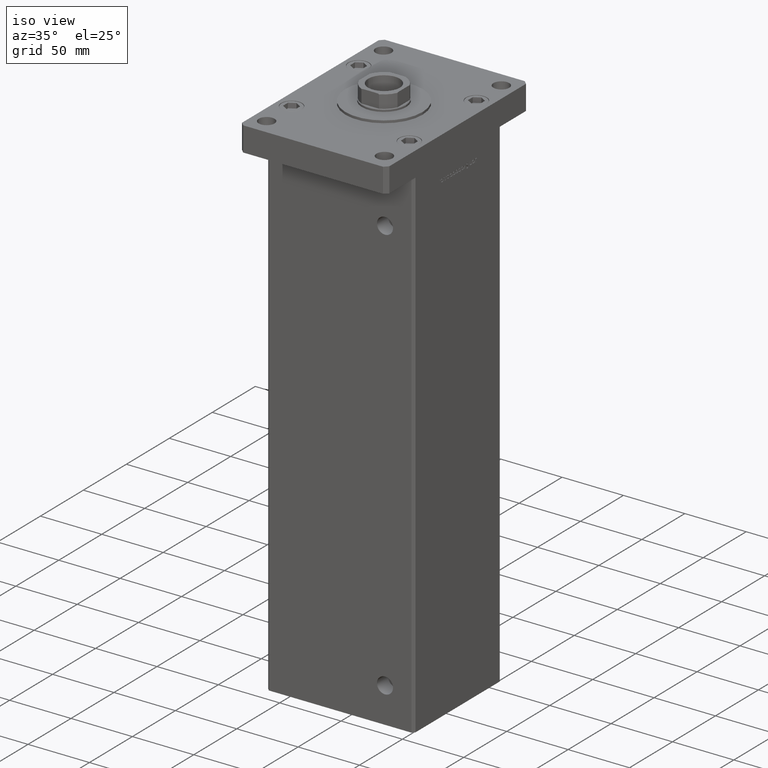
[diagram: clean part render]
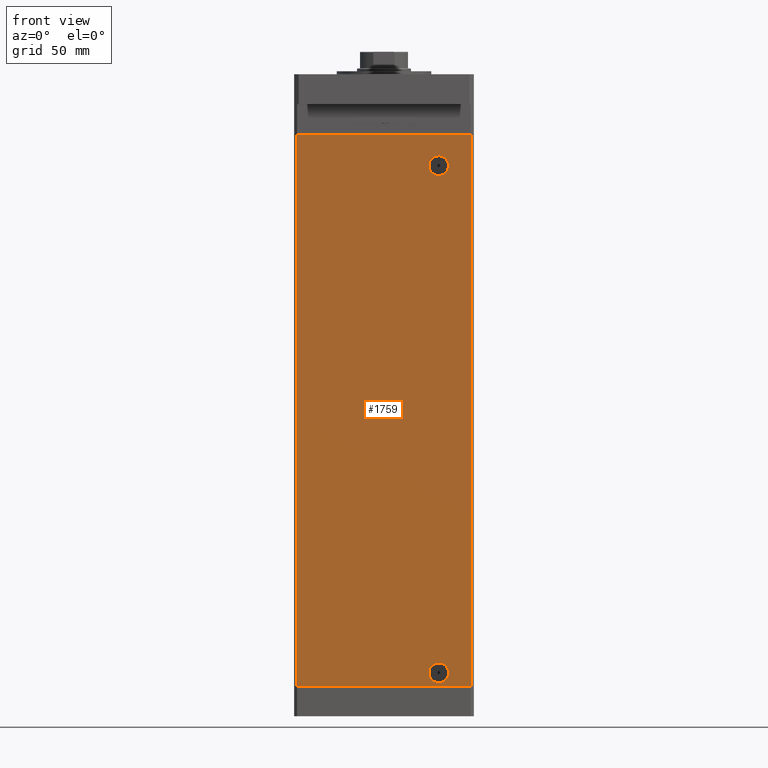
[diagram: tour spotlight — one face highlighted and labeled with its STEP entity id]
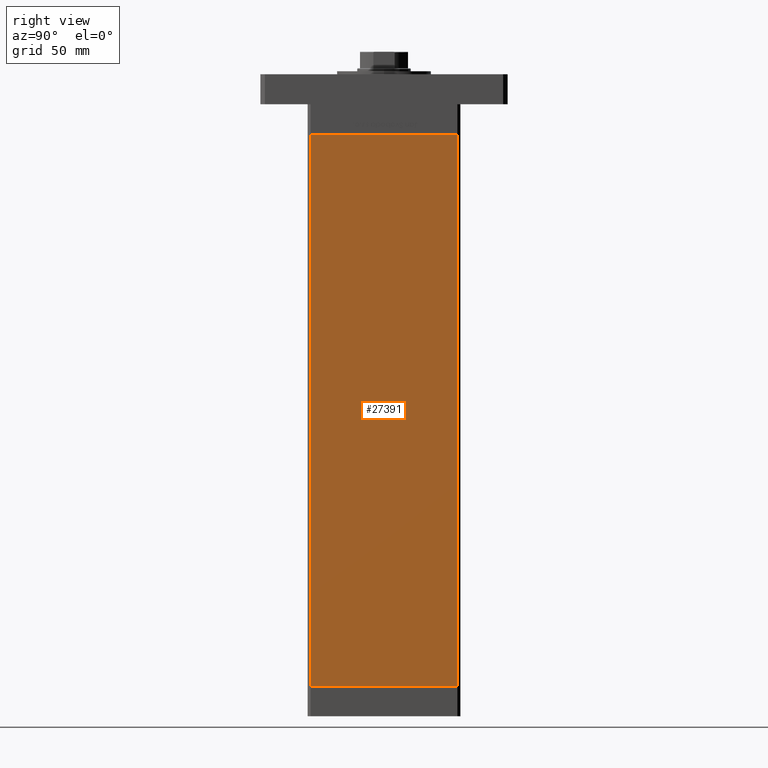
[diagram: tour spotlight — one face highlighted and labeled with its STEP entity id]
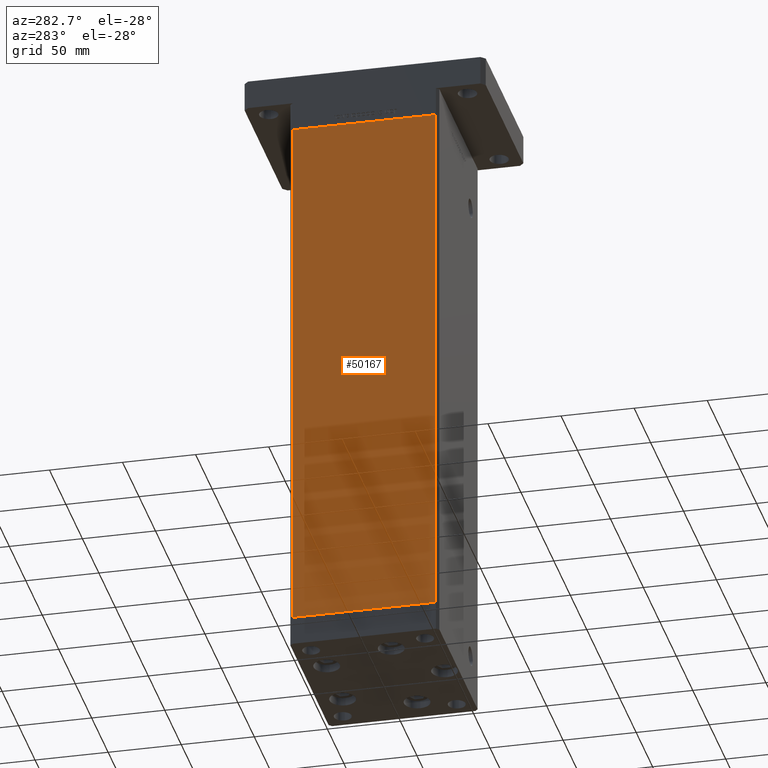
[diagram: tour spotlight — one face highlighted and labeled with its STEP entity id]
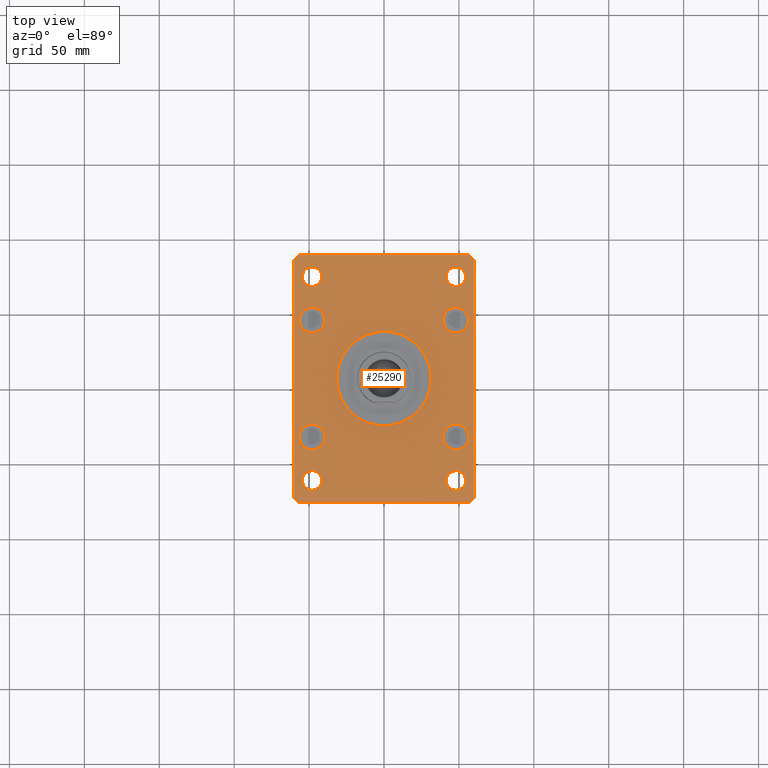
[diagram: tour spotlight — one face highlighted and labeled with its STEP entity id]
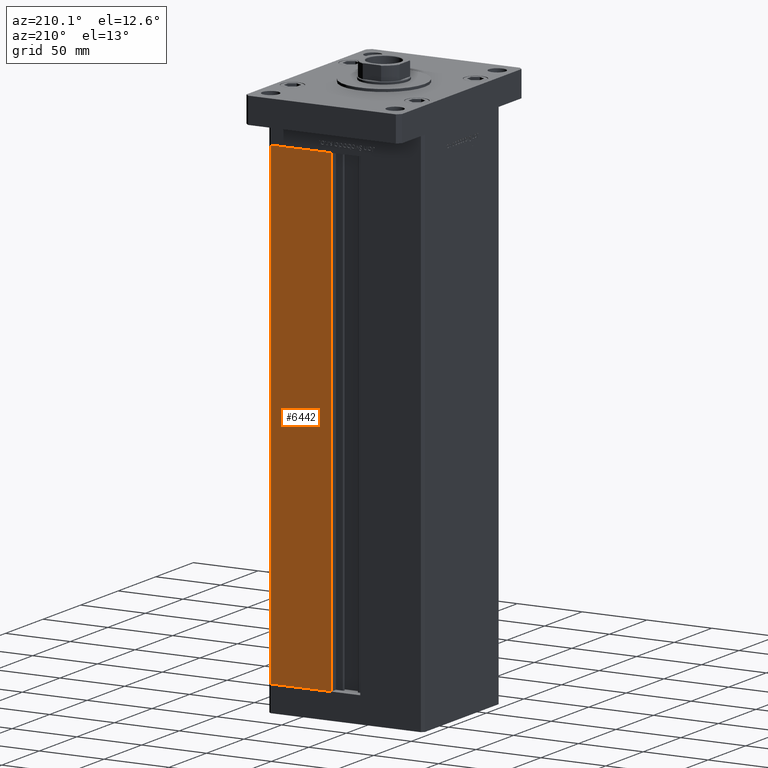
[diagram: tour spotlight — one face highlighted and labeled with its STEP entity id]
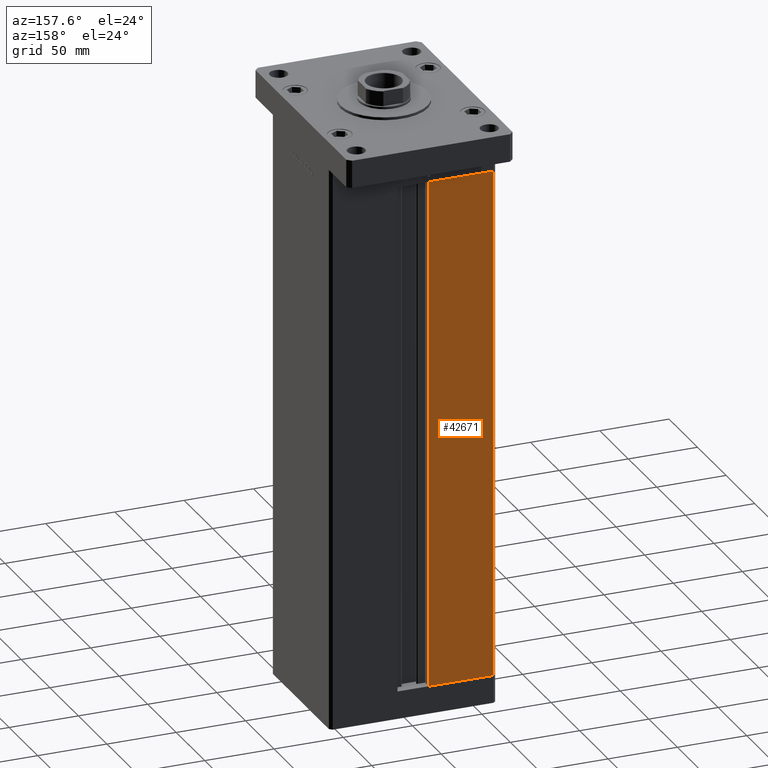
[diagram: tour spotlight — one face highlighted and labeled with its STEP entity id]
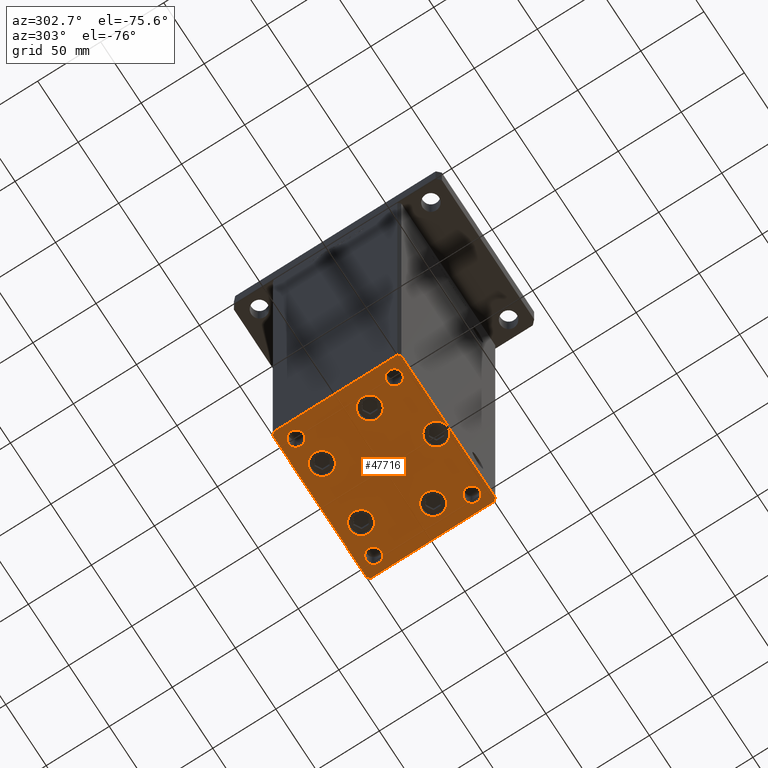
[diagram: tour spotlight — one face highlighted and labeled with its STEP entity id]
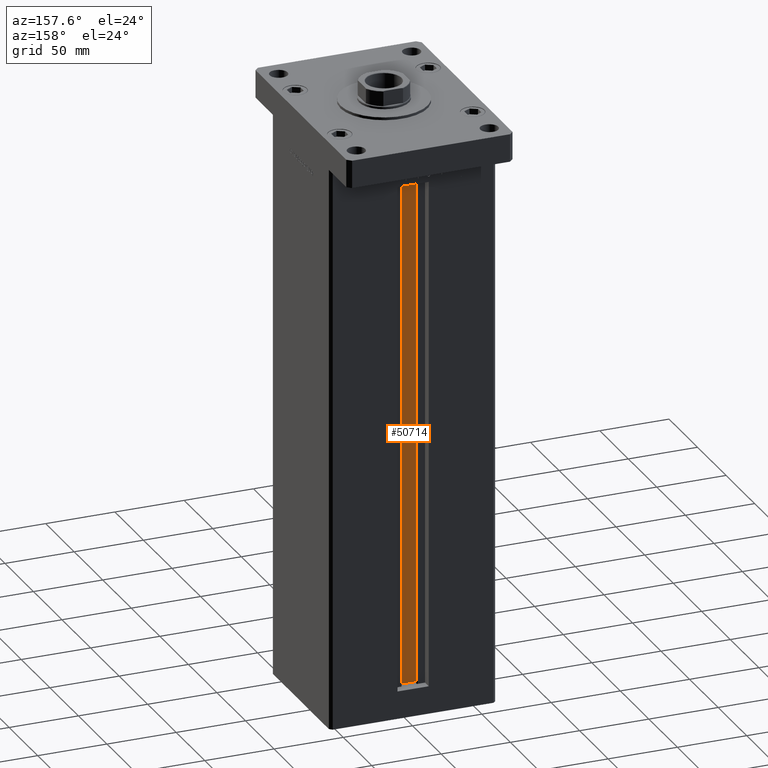
[diagram: tour spotlight — one face highlighted and labeled with its STEP entity id]
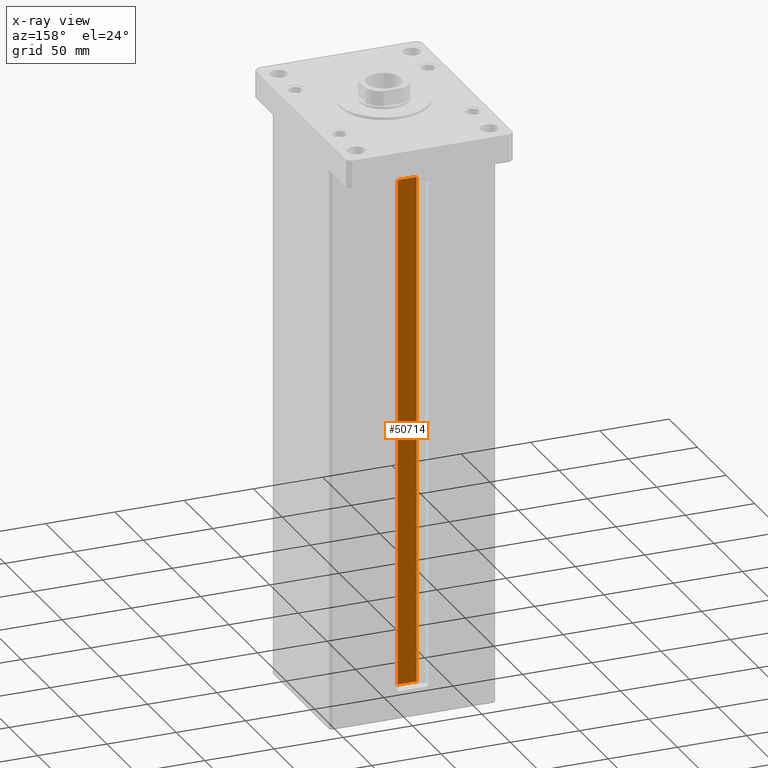
[diagram: x-ray of the same camera — body ghosted, this tour face saturated]
A machine part: a face-by-face anatomy tour. The part has 1311 B-rep faces; the first image is the clean iso view, then the 8 largest visible faces are spotlighted one at a time (largest first), each with its STEP entity span.

Face 1 — front view, entity #1759. In plain terms, the highlighted planar face has unit normal (0, 1, 0).
Definition (entity closure, byte-faithful):
#94 = CARTESIAN_POINT ( 'NONE',  ( 36.49999999999994316, -51.00000000000000711, 354.0799999999999841 ) ) ;
#563 = EDGE_CURVE ( 'NONE', #42970, #30931, #19921, .T. ) ;
#930 = ORIENTED_EDGE ( 'NONE', *, *, #36966, .T. ) ;
#1759 = ADVANCED_FACE ( 'NONE', ( #27655, #23576, #48882 ), #53220, .F. ) ;
#2707 = EDGE_LOOP ( 'NONE', ( #3110, #22055, #22672, #930 ) ) ;
#3110 = ORIENTED_EDGE ( 'NONE', *, *, #563, .T. ) ;
#3286 = VECTOR ( 'NONE', #44430, 1000.000000000000000 ) ;
#3647 = ORIENTED_EDGE ( 'NONE', *, *, #33888, .F. ) ;
#3967 = CARTESIAN_POINT ( 'NONE',  ( 36.49999999999994316, -51.00000000000000711, 347.5000000000000568 ) ) ;
#5254 = VECTOR ( 'NONE', #38404, 1000.000000000000000 ) ;
#5536 = DIRECTION ( 'NONE',  ( -0.000000000000000000, 1.000000000000000000, -0.000000000000000000 ) ) ;
#6032 = CIRCLE ( 'NONE', #12967, 6.579999999999994742 ) ;
#6995 = DIRECTION ( 'NONE',  ( 0.000000000000000000, 1.000000000000000000, 0.000000000000000000 ) ) ;
#7225 = DIRECTION ( 'NONE',  ( 0.000000000000000000, -1.000000000000000000, 0.000000000000000000 ) ) ;
#7906 = AXIS2_PLACEMENT_3D ( 'NONE', #12349, #33543, #25124 ) ;
#7928 = ORIENTED_EDGE ( 'NONE', *, *, #16205, .T. ) ;
#8093 = VERTEX_POINT ( 'NONE', #26574 ) ;
#8483 = VERTEX_POINT ( 'NONE', #94 ) ;
#9593 = CARTESIAN_POINT ( 'NONE',  ( 36.49999999999994316, -51.00000000000000711, 347.5000000000000568 ) ) ;
#10082 = EDGE_LOOP ( 'NONE', ( #42730, #7928 ) ) ;
#10237 = EDGE_CURVE ( 'NONE', #33351, #46052, #31321, .T. ) ;
#11212 = DIRECTION ( 'NONE',  ( 1.000000000000000000, 0.000000000000000000, 0.000000000000000000 ) ) ;
#12345 = VECTOR ( 'NONE', #36146, 1000.000000000000000 ) ;
#12349 = CARTESIAN_POINT ( 'NONE',  ( 36.49999999999998579, -51.00000000000000711, 9.000000000000007105 ) ) ;
#12967 = AXIS2_PLACEMENT_3D ( 'NONE', #31686, #7225, #49102 ) ;
#13848 = VERTEX_POINT ( 'NONE', #42951 ) ;
#14709 = LINE ( 'NONE', #21801, #5254 ) ;
#14942 = LINE ( 'NONE', #44607, #12345 ) ;
#15688 = CARTESIAN_POINT ( 'NONE',  ( -57.99999999999997868, -51.00000000000000711, 368.5000000000000000 ) ) ;
#16205 = EDGE_CURVE ( 'NONE', #8483, #13848, #18361, .T. ) ;
#17667 = EDGE_CURVE ( 'NONE', #27696, #30931, #14942, .T. ) ;
#18361 = CIRCLE ( 'NONE', #51375, 6.579999999999975202 ) ;
#19921 = LINE ( 'NONE', #27822, #3286 ) ;
#21801 = CARTESIAN_POINT ( 'NONE',  ( -57.99999999999997868, -51.00000000000000711, 368.5000000000000000 ) ) ;
#21971 = VECTOR ( 'NONE', #11212, 1000.000000000000000 ) ;
#22055 = ORIENTED_EDGE ( 'NONE', *, *, #17667, .F. ) ;
#22672 = ORIENTED_EDGE ( 'NONE', *, *, #43858, .F. ) ;
#23037 = CARTESIAN_POINT ( 'NONE',  ( 36.49999999999998579, -51.00000000000000711, 2.420000000000013252 ) ) ;
#23576 = FACE_OUTER_BOUND ( 'NONE', #2707, .T. ) ;
#25124 = DIRECTION ( 'NONE',  ( 0.000000000000000000, 0.000000000000000000, -1.000000000000000000 ) ) ;
#26574 = CARTESIAN_POINT ( 'NONE',  ( -57.99999999999997868, -51.00000000000000711, 368.5000000000000000 ) ) ;
#27655 = FACE_BOUND ( 'NONE', #27763, .T. ) ;
#27696 = VERTEX_POINT ( 'NONE', #53207 ) ;
#27741 = EDGE_CURVE ( 'NONE', #13848, #8483, #28511, .T. ) ;
#27763 = EDGE_LOOP ( 'NONE', ( #3647, #50672 ) ) ;
#27822 = CARTESIAN_POINT ( 'NONE',  ( -57.99999999999997868, -51.00000000000000711, 0.000000000000000000 ) ) ;
#28511 = CIRCLE ( 'NONE', #53702, 6.579999999999975202 ) ;
#30931 = VERTEX_POINT ( 'NONE', #39270 ) ;
#31321 = CIRCLE ( 'NONE', #7906, 6.579999999999994742 ) ;
#31686 = CARTESIAN_POINT ( 'NONE',  ( 36.49999999999998579, -51.00000000000000711, 9.000000000000007105 ) ) ;
#31874 = LINE ( 'NONE', #48489, #21971 ) ;
#33351 = VERTEX_POINT ( 'NONE', #42137 ) ;
#33543 = DIRECTION ( 'NONE',  ( 0.000000000000000000, -1.000000000000000000, 0.000000000000000000 ) ) ;
#33888 = EDGE_CURVE ( 'NONE', #46052, #33351, #6032, .T. ) ;
#34553 = AXIS2_PLACEMENT_3D ( 'NONE', #15688, #6995, #53478 ) ;
#36146 = DIRECTION ( 'NONE',  ( -0.000000000000000000, -0.000000000000000000, -1.000000000000000000 ) ) ;
#36966 = EDGE_CURVE ( 'NONE', #8093, #42970, #14709, .T. ) ;
#38404 = DIRECTION ( 'NONE',  ( -0.000000000000000000, -0.000000000000000000, -1.000000000000000000 ) ) ;
#39270 = CARTESIAN_POINT ( 'NONE',  ( 57.99999999999997868, -51.00000000000000711, 0.000000000000000000 ) ) ;
#42137 = CARTESIAN_POINT ( 'NONE',  ( 36.49999999999998579, -51.00000000000000711, 15.58000000000000362 ) ) ;
#42246 = DIRECTION ( 'NONE',  ( 0.000000000000000000, 0.000000000000000000, -1.000000000000000000 ) ) ;
#42730 = ORIENTED_EDGE ( 'NONE', *, *, #27741, .T. ) ;
#42951 = CARTESIAN_POINT ( 'NONE',  ( 36.49999999999994316, -51.00000000000000711, 340.9200000000000728 ) ) ;
#42970 = VERTEX_POINT ( 'NONE', #52822 ) ;
#43858 = EDGE_CURVE ( 'NONE', #8093, #27696, #31874, .T. ) ;
#44430 = DIRECTION ( 'NONE',  ( 1.000000000000000000, 0.000000000000000000, 0.000000000000000000 ) ) ;
#44523 = DIRECTION ( 'NONE',  ( -0.000000000000000000, 1.000000000000000000, -0.000000000000000000 ) ) ;
#44607 = CARTESIAN_POINT ( 'NONE',  ( 57.99999999999997868, -51.00000000000000711, 368.5000000000000000 ) ) ;
#46052 = VERTEX_POINT ( 'NONE', #23037 ) ;
#48489 = CARTESIAN_POINT ( 'NONE',  ( -57.99999999999997868, -51.00000000000000711, 368.5000000000000000 ) ) ;
#48882 = FACE_BOUND ( 'NONE', #10082, .T. ) ;
#49102 = DIRECTION ( 'NONE',  ( 0.000000000000000000, 0.000000000000000000, -1.000000000000000000 ) ) ;
#49663 = DIRECTION ( 'NONE',  ( 0.000000000000000000, 0.000000000000000000, -1.000000000000000000 ) ) ;
#50672 = ORIENTED_EDGE ( 'NONE', *, *, #10237, .F. ) ;
#51375 = AXIS2_PLACEMENT_3D ( 'NONE', #9593, #5536, #42246 ) ;
#52822 = CARTESIAN_POINT ( 'NONE',  ( -57.99999999999997868, -51.00000000000000711, 0.000000000000000000 ) ) ;
#53207 = CARTESIAN_POINT ( 'NONE',  ( 57.99999999999997868, -51.00000000000000711, 368.5000000000000000 ) ) ;
#53220 = PLANE ( 'NONE',  #34553 ) ;
#53478 = DIRECTION ( 'NONE',  ( 0.000000000000000000, -0.000000000000000000, 1.000000000000000000 ) ) ;
#53702 = AXIS2_PLACEMENT_3D ( 'NONE', #3967, #44523, #49663 ) ;

Face 2 — right view, entity #27391. In plain terms, the highlighted planar face has unit normal (1, -0, 0).
Definition (entity closure, byte-faithful):
#2951 = VERTEX_POINT ( 'NONE', #34888 ) ;
#3360 = AXIS2_PLACEMENT_3D ( 'NONE', #33716, #34789, #50324 ) ;
#7662 = CARTESIAN_POINT ( 'NONE',  ( 59.99999999999998579, -49.00000000000000000, 368.5000000000000000 ) ) ;
#10142 = VECTOR ( 'NONE', #37283, 1000.000000000000000 ) ;
#11432 = CARTESIAN_POINT ( 'NONE',  ( 60.00000000000001421, 49.00000000000000000, 368.5000000000000000 ) ) ;
#12796 = LINE ( 'NONE', #38082, #10142 ) ;
#12943 = VERTEX_POINT ( 'NONE', #31556 ) ;
#15312 = ORIENTED_EDGE ( 'NONE', *, *, #22100, .F. ) ;
#15899 = ORIENTED_EDGE ( 'NONE', *, *, #31544, .F. ) ;
#16532 = CARTESIAN_POINT ( 'NONE',  ( 59.99999999999998579, -49.00000000000000000, 0.000000000000000000 ) ) ;
#17399 = PLANE ( 'NONE',  #3360 ) ;
#21255 = ORIENTED_EDGE ( 'NONE', *, *, #52867, .T. ) ;
#21375 = ORIENTED_EDGE ( 'NONE', *, *, #42251, .T. ) ;
#21932 = VECTOR ( 'NONE', #52813, 1000.000000000000000 ) ;
#22100 = EDGE_CURVE ( 'NONE', #12943, #25761, #12796, .T. ) ;
#22279 = FACE_OUTER_BOUND ( 'NONE', #41986, .T. ) ;
#25761 = VERTEX_POINT ( 'NONE', #16532 ) ;
#27118 = CARTESIAN_POINT ( 'NONE',  ( 60.00000000000001421, 49.00000000000000000, 368.5000000000000000 ) ) ;
#27391 = ADVANCED_FACE ( 'NONE', ( #22279 ), #17399, .T. ) ;
#31544 = EDGE_CURVE ( 'NONE', #2951, #12943, #44538, .T. ) ;
#31556 = CARTESIAN_POINT ( 'NONE',  ( 60.00000000000001421, 49.00000000000000000, 0.000000000000000000 ) ) ;
#32631 = DIRECTION ( 'NONE',  ( -2.832201593431521726E-16, -1.000000000000000000, 0.000000000000000000 ) ) ;
#33716 = CARTESIAN_POINT ( 'NONE',  ( 60.00000000000001421, 49.00000000000000000, 368.5000000000000000 ) ) ;
#34754 = VECTOR ( 'NONE', #47529, 1000.000000000000000 ) ;
#34789 = DIRECTION ( 'NONE',  ( 1.000000000000000000, -2.832201593431521726E-16, 0.000000000000000000 ) ) ;
#34888 = CARTESIAN_POINT ( 'NONE',  ( 60.00000000000001421, 49.00000000000000000, 368.5000000000000000 ) ) ;
#37283 = DIRECTION ( 'NONE',  ( -2.832201593431521726E-16, -1.000000000000000000, 0.000000000000000000 ) ) ;
#38082 = CARTESIAN_POINT ( 'NONE',  ( 60.00000000000001421, 49.00000000000000000, 0.000000000000000000 ) ) ;
#39518 = VERTEX_POINT ( 'NONE', #44184 ) ;
#41986 = EDGE_LOOP ( 'NONE', ( #15312, #15899, #21255, #21375 ) ) ;
#42251 = EDGE_CURVE ( 'NONE', #39518, #25761, #48203, .T. ) ;
#42792 = VECTOR ( 'NONE', #32631, 1000.000000000000000 ) ;
#44184 = CARTESIAN_POINT ( 'NONE',  ( 59.99999999999998579, -49.00000000000000000, 368.5000000000000000 ) ) ;
#44538 = LINE ( 'NONE', #27118, #34754 ) ;
#45163 = LINE ( 'NONE', #11432, #42792 ) ;
#47529 = DIRECTION ( 'NONE',  ( -0.000000000000000000, -0.000000000000000000, -1.000000000000000000 ) ) ;
#48203 = LINE ( 'NONE', #7662, #21932 ) ;
#50324 = DIRECTION ( 'NONE',  ( 2.832201593431521726E-16, 1.000000000000000000, 0.000000000000000000 ) ) ;
#52813 = DIRECTION ( 'NONE',  ( -0.000000000000000000, -0.000000000000000000, -1.000000000000000000 ) ) ;
#52867 = EDGE_CURVE ( 'NONE', #2951, #39518, #45163, .T. ) ;

Face 3 — auxiliary view, entity #50167. In plain terms, the highlighted planar face has unit normal (1, 0, 0).
Definition (entity closure, byte-faithful):
#504 = DIRECTION ( 'NONE',  ( 2.832201593431521726E-16, -1.000000000000000000, 0.000000000000000000 ) ) ;
#5886 = DIRECTION ( 'NONE',  ( 1.000000000000000000, 2.832201593431521726E-16, -0.000000000000000000 ) ) ;
#6809 = EDGE_CURVE ( 'NONE', #8745, #34875, #52540, .T. ) ;
#8745 = VERTEX_POINT ( 'NONE', #52015 ) ;
#13093 = CARTESIAN_POINT ( 'NONE',  ( -60.00000000000001421, 49.00000000000000000, 368.5000000000000000 ) ) ;
#14571 = FACE_OUTER_BOUND ( 'NONE', #26157, .T. ) ;
#15677 = LINE ( 'NONE', #22544, #21856 ) ;
#17798 = EDGE_CURVE ( 'NONE', #28876, #20085, #29061, .T. ) ;
#18381 = PLANE ( 'NONE',  #36802 ) ;
#20085 = VERTEX_POINT ( 'NONE', #28677 ) ;
#20154 = VECTOR ( 'NONE', #504, 1000.000000000000000 ) ;
#21856 = VECTOR ( 'NONE', #47584, 1000.000000000000000 ) ;
#22544 = CARTESIAN_POINT ( 'NONE',  ( -59.99999999999998579, -49.00000000000000000, 368.5000000000000000 ) ) ;
#26157 = EDGE_LOOP ( 'NONE', ( #26712, #41366, #40607, #49313 ) ) ;
#26712 = ORIENTED_EDGE ( 'NONE', *, *, #6809, .T. ) ;
#28573 = CARTESIAN_POINT ( 'NONE',  ( -60.00000000000001421, 49.00000000000000000, 0.000000000000000000 ) ) ;
#28677 = CARTESIAN_POINT ( 'NONE',  ( -59.99999999999998579, -49.00000000000000000, 368.5000000000000000 ) ) ;
#28853 = VECTOR ( 'NONE', #34376, 1000.000000000000000 ) ;
#28876 = VERTEX_POINT ( 'NONE', #13093 ) ;
#29061 = LINE ( 'NONE', #41572, #20154 ) ;
#30091 = CARTESIAN_POINT ( 'NONE',  ( -59.99999999999998579, -49.00000000000000000, 0.000000000000000000 ) ) ;
#30555 = LINE ( 'NONE', #50179, #28853 ) ;
#34376 = DIRECTION ( 'NONE',  ( -0.000000000000000000, -0.000000000000000000, -1.000000000000000000 ) ) ;
#34875 = VERTEX_POINT ( 'NONE', #30091 ) ;
#35607 = VECTOR ( 'NONE', #52796, 1000.000000000000000 ) ;
#36802 = AXIS2_PLACEMENT_3D ( 'NONE', #39604, #5886, #39064 ) ;
#39064 = DIRECTION ( 'NONE',  ( -2.832201593431521726E-16, 1.000000000000000000, 0.000000000000000000 ) ) ;
#39604 = CARTESIAN_POINT ( 'NONE',  ( -60.00000000000001421, 49.00000000000000000, 368.5000000000000000 ) ) ;
#40607 = ORIENTED_EDGE ( 'NONE', *, *, #17798, .F. ) ;
#40897 = EDGE_CURVE ( 'NONE', #20085, #34875, #15677, .T. ) ;
#41366 = ORIENTED_EDGE ( 'NONE', *, *, #40897, .F. ) ;
#41572 = CARTESIAN_POINT ( 'NONE',  ( -60.00000000000001421, 49.00000000000000000, 368.5000000000000000 ) ) ;
#42177 = EDGE_CURVE ( 'NONE', #28876, #8745, #30555, .T. ) ;
#47584 = DIRECTION ( 'NONE',  ( -0.000000000000000000, -0.000000000000000000, -1.000000000000000000 ) ) ;
#49313 = ORIENTED_EDGE ( 'NONE', *, *, #42177, .T. ) ;
#50167 = ADVANCED_FACE ( 'NONE', ( #14571 ), #18381, .F. ) ;
#50179 = CARTESIAN_POINT ( 'NONE',  ( -60.00000000000001421, 49.00000000000000000, 368.5000000000000000 ) ) ;
#52015 = CARTESIAN_POINT ( 'NONE',  ( -60.00000000000001421, 49.00000000000000000, 0.000000000000000000 ) ) ;
#52540 = LINE ( 'NONE', #28573, #35607 ) ;
#52796 = DIRECTION ( 'NONE',  ( 2.832201593431521726E-16, -1.000000000000000000, 0.000000000000000000 ) ) ;

Face 4 — top view, entity #25290. In plain terms, the highlighted planar face has unit normal (0, 0, 1).
Definition (entity closure, byte-faithful):
#124 = CIRCLE ( 'NONE', #14010, 8.500000000000000000 ) ;
#708 = CARTESIAN_POINT ( 'NONE',  ( -41.49999999999999289, 68.00000000000001421, 20.00000000000000000 ) ) ;
#860 = VERTEX_POINT ( 'NONE', #39199 ) ;
#1345 = EDGE_CURVE ( 'NONE', #860, #31368, #38058, .T. ) ;
#1497 = CARTESIAN_POINT ( 'NONE',  ( 48.00000000000000000, 38.99999999999999289, 20.00000000000000000 ) ) ;
#1526 = ORIENTED_EDGE ( 'NONE', *, *, #23518, .F. ) ;
#1597 = VERTEX_POINT ( 'NONE', #17083 ) ;
#1624 = CARTESIAN_POINT ( 'NONE',  ( 48.00000000000000000, 67.99999999999998579, 20.00000000000000000 ) ) ;
#2001 = CARTESIAN_POINT ( 'NONE',  ( -41.49999999999996447, -68.00000000000001421, 20.00000000000000000 ) ) ;
#2063 = CIRCLE ( 'NONE', #12504, 31.50000000000000000 ) ;
#2528 = CARTESIAN_POINT ( 'NONE',  ( 57.00000000000002132, 82.50000000000002842, 20.00000000000000000 ) ) ;
#2570 = EDGE_CURVE ( 'NONE', #47286, #49569, #14552, .T. ) ;
#2886 = EDGE_LOOP ( 'NONE', ( #29255, #50290 ) ) ;
#2918 = DIRECTION ( 'NONE',  ( 2.618450529776312260E-16, -1.000000000000000000, 0.000000000000000000 ) ) ;
#2948 = CARTESIAN_POINT ( 'NONE',  ( 39.50000000000000711, -38.99999999999999289, 20.00000000000000000 ) ) ;
#3583 = VERTEX_POINT ( 'NONE', #9141 ) ;
#3671 = CARTESIAN_POINT ( 'NONE',  ( 60.00000000000000711, 79.50000000000001421, 20.00000000000000000 ) ) ;
#3937 = EDGE_LOOP ( 'NONE', ( #1526, #52393 ) ) ;
#4054 = EDGE_CURVE ( 'NONE', #20017, #12141, #32038, .T. ) ;
#4129 = ORIENTED_EDGE ( 'NONE', *, *, #35793, .T. ) ;
#5114 = DIRECTION ( 'NONE',  ( 1.000000000000000000, 0.000000000000000000, 0.000000000000000000 ) ) ;
#5258 = CIRCLE ( 'NONE', #17395, 6.500000000000005329 ) ;
#5472 = ORIENTED_EDGE ( 'NONE', *, *, #35229, .F. ) ;
#5832 = DIRECTION ( 'NONE',  ( 1.000000000000000000, 0.000000000000000000, 0.000000000000000000 ) ) ;
#5878 = EDGE_LOOP ( 'NONE', ( #21927, #34451 ) ) ;
#5989 = DIRECTION ( 'NONE',  ( 1.000000000000000000, 0.000000000000000000, 0.000000000000000000 ) ) ;
#6096 = CARTESIAN_POINT ( 'NONE',  ( 0.000000000000000000, 0.000000000000000000, 20.00000000000000000 ) ) ;
#6308 = FACE_BOUND ( 'NONE', #2886, .T. ) ;
#6706 = AXIS2_PLACEMENT_3D ( 'NONE', #23332, #52726, #11371 ) ;
#6825 = EDGE_CURVE ( 'NONE', #12440, #14033, #7649, .T. ) ;
#7275 = VECTOR ( 'NONE', #48307, 1000.000000000000114 ) ;
#7281 = EDGE_LOOP ( 'NONE', ( #14080, #13764 ) ) ;
#7649 = LINE ( 'NONE', #24222, #15626 ) ;
#7782 = ORIENTED_EDGE ( 'NONE', *, *, #22575, .F. ) ;
#7786 = EDGE_CURVE ( 'NONE', #47212, #23815, #37394, .T. ) ;
#8202 = CARTESIAN_POINT ( 'NONE',  ( 48.00000000000000000, 67.99999999999998579, 20.00000000000000000 ) ) ;
#8203 = AXIS2_PLACEMENT_3D ( 'NONE', #38525, #33359, #34155 ) ;
#8649 = CARTESIAN_POINT ( 'NONE',  ( 48.00000000000000000, -38.99999999999999289, 20.00000000000000000 ) ) ;
#8836 = EDGE_CURVE ( 'NONE', #23815, #47212, #5258, .T. ) ;
#8887 = EDGE_CURVE ( 'NONE', #49569, #37218, #10534, .T. ) ;
#9141 = CARTESIAN_POINT ( 'NONE',  ( 41.49999999999996447, -68.00000000000001421, 20.00000000000000000 ) ) ;
#10001 = DIRECTION ( 'NONE',  ( 0.000000000000000000, 0.000000000000000000, 1.000000000000000000 ) ) ;
#10195 = LINE ( 'NONE', #14005, #20963 ) ;
#10257 = CARTESIAN_POINT ( 'NONE',  ( 47.99999999999997158, -68.00000000000001421, 20.00000000000000000 ) ) ;
#10534 = LINE ( 'NONE', #43185, #20004 ) ;
#10642 = CIRCLE ( 'NONE', #34084, 6.500000000000005329 ) ;
#10645 = FACE_BOUND ( 'NONE', #50258, .T. ) ;
#10688 = CARTESIAN_POINT ( 'NONE',  ( 54.50000000000000711, 67.99999999999998579, 20.00000000000000000 ) ) ;
#10911 = DIRECTION ( 'NONE',  ( 1.000000000000000000, 0.000000000000000000, -0.000000000000000000 ) ) ;
#10952 = CARTESIAN_POINT ( 'NONE',  ( -56.99999999999999289, -82.50000000000001421, 20.00000000000000000 ) ) ;
#11003 = CIRCLE ( 'NONE', #50110, 6.500000000000005329 ) ;
#11120 = AXIS2_PLACEMENT_3D ( 'NONE', #18489, #48410, #5989 ) ;
#11347 = ORIENTED_EDGE ( 'NONE', *, *, #39719, .F. ) ;
#11371 = DIRECTION ( 'NONE',  ( 1.000000000000000000, 0.000000000000000000, 0.000000000000000000 ) ) ;
#11450 = FACE_BOUND ( 'NONE', #41858, .T. ) ;
#12141 = VERTEX_POINT ( 'NONE', #2948 ) ;
#12440 = VERTEX_POINT ( 'NONE', #3671 ) ;
#12504 = AXIS2_PLACEMENT_3D ( 'NONE', #16358, #16101, #32943 ) ;
#12904 = DIRECTION ( 'NONE',  ( 0.000000000000000000, 0.000000000000000000, 1.000000000000000000 ) ) ;
#12926 = DIRECTION ( 'NONE',  ( 1.000000000000000000, 0.000000000000000000, 0.000000000000000000 ) ) ;
#12992 = DIRECTION ( 'NONE',  ( 0.000000000000000000, 0.000000000000000000, 1.000000000000000000 ) ) ;
#13234 = ORIENTED_EDGE ( 'NONE', *, *, #31109, .F. ) ;
#13764 = ORIENTED_EDGE ( 'NONE', *, *, #7786, .F. ) ;
#14005 = CARTESIAN_POINT ( 'NONE',  ( 60.00000000000000000, -79.49999999999990052, 20.00000000000000000 ) ) ;
#14010 = AXIS2_PLACEMENT_3D ( 'NONE', #43624, #31901, #5832 ) ;
#14033 = VERTEX_POINT ( 'NONE', #49449 ) ;
#14080 = ORIENTED_EDGE ( 'NONE', *, *, #8836, .F. ) ;
#14552 = LINE ( 'NONE', #23239, #25050 ) ;
#14645 = VERTEX_POINT ( 'NONE', #52680 ) ;
#14792 = EDGE_CURVE ( 'NONE', #43747, #25442, #10642, .T. ) ;
#14999 = FACE_OUTER_BOUND ( 'NONE', #45428, .T. ) ;
#15626 = VECTOR ( 'NONE', #40830, 999.9999999999998863 ) ;
#15728 = CARTESIAN_POINT ( 'NONE',  ( 60.00000000000000000, -79.49999999999990052, 20.00000000000000000 ) ) ;
#15911 = EDGE_CURVE ( 'NONE', #37218, #12440, #10195, .T. ) ;
#16001 = CIRCLE ( 'NONE', #8203, 8.500000000000000000 ) ;
#16101 = DIRECTION ( 'NONE',  ( 0.000000000000000000, 0.000000000000000000, 1.000000000000000000 ) ) ;
#16358 = CARTESIAN_POINT ( 'NONE',  ( 0.000000000000000000, 0.000000000000000000, 20.00000000000000000 ) ) ;
#16454 = DIRECTION ( 'NONE',  ( 1.000000000000000000, 0.000000000000000000, 0.000000000000000000 ) ) ;
#16461 = AXIS2_PLACEMENT_3D ( 'NONE', #19879, #28851, #45455 ) ;
#16470 = DIRECTION ( 'NONE',  ( 1.000000000000000000, 0.000000000000000000, 0.000000000000000000 ) ) ;
#16511 = ORIENTED_EDGE ( 'NONE', *, *, #31554, .T. ) ;
#16965 = CARTESIAN_POINT ( 'NONE',  ( 56.49999999999999289, -38.99999999999999289, 20.00000000000000000 ) ) ;
#16973 = CARTESIAN_POINT ( 'NONE',  ( -59.99999999999998579, -79.50000000000002842, 20.00000000000000000 ) ) ;
#16996 = CARTESIAN_POINT ( 'NONE',  ( -31.50000000000000000, 0.000000000000000000, 20.00000000000000000 ) ) ;
#17002 = DIRECTION ( 'NONE',  ( 0.000000000000000000, 0.000000000000000000, 1.000000000000000000 ) ) ;
#17083 = CARTESIAN_POINT ( 'NONE',  ( 31.50000000000000000, 3.857637417314162689E-15, 20.00000000000000000 ) ) ;
#17395 = AXIS2_PLACEMENT_3D ( 'NONE', #8202, #10001, #51618 ) ;
#17505 = CIRCLE ( 'NONE', #48785, 6.500000000000005329 ) ;
#17648 = CARTESIAN_POINT ( 'NONE',  ( -60.00000000000002842, 79.50000000000001421, 20.00000000000000000 ) ) ;
#18020 = AXIS2_PLACEMENT_3D ( 'NONE', #45305, #12904, #16454 ) ;
#18200 = CARTESIAN_POINT ( 'NONE',  ( -54.50000000000000711, 68.00000000000001421, 20.00000000000000000 ) ) ;
#18332 = CARTESIAN_POINT ( 'NONE',  ( -54.49999999999997868, -68.00000000000001421, 20.00000000000000000 ) ) ;
#18489 = CARTESIAN_POINT ( 'NONE',  ( -48.00000000000001421, 39.00000000000000000, 20.00000000000000000 ) ) ;
#18748 = ORIENTED_EDGE ( 'NONE', *, *, #50298, .T. ) ;
#18798 = FACE_BOUND ( 'NONE', #35282, .T. ) ;
#19611 = PLANE ( 'NONE',  #24129 ) ;
#19879 = CARTESIAN_POINT ( 'NONE',  ( -47.99999999999997158, -68.00000000000001421, 20.00000000000000000 ) ) ;
#20004 = VECTOR ( 'NONE', #42919, 1000.000000000000114 ) ;
#20017 = VERTEX_POINT ( 'NONE', #16965 ) ;
#20371 = VERTEX_POINT ( 'NONE', #38876 ) ;
#20474 = CARTESIAN_POINT ( 'NONE',  ( -48.00000000000001421, 39.00000000000000000, 20.00000000000000000 ) ) ;
#20963 = VECTOR ( 'NONE', #30586, 1000.000000000000000 ) ;
#21148 = ORIENTED_EDGE ( 'NONE', *, *, #48208, .F. ) ;
#21927 = ORIENTED_EDGE ( 'NONE', *, *, #30919, .F. ) ;
#21934 = CIRCLE ( 'NONE', #43691, 8.499999999999992895 ) ;
#22575 = EDGE_CURVE ( 'NONE', #14645, #3583, #11003, .T. ) ;
#23239 = CARTESIAN_POINT ( 'NONE',  ( -56.99999999999999289, -82.50000000000001421, 20.00000000000000000 ) ) ;
#23332 = CARTESIAN_POINT ( 'NONE',  ( -48.00000000000000000, 68.00000000000001421, 20.00000000000000000 ) ) ;
#23518 = EDGE_CURVE ( 'NONE', #25442, #43747, #30121, .T. ) ;
#23569 = CIRCLE ( 'NONE', #30503, 8.499999999999992895 ) ;
#23815 = VERTEX_POINT ( 'NONE', #33899 ) ;
#23850 = DIRECTION ( 'NONE',  ( 1.000000000000000000, 0.000000000000000000, 0.000000000000000000 ) ) ;
#24129 = AXIS2_PLACEMENT_3D ( 'NONE', #28043, #31297, #10911 ) ;
#24222 = CARTESIAN_POINT ( 'NONE',  ( 60.00000000000000711, 79.50000000000001421, 20.00000000000000000 ) ) ;
#24347 = VECTOR ( 'NONE', #2918, 1000.000000000000000 ) ;
#24385 = ORIENTED_EDGE ( 'NONE', *, *, #39979, .F. ) ;
#24443 = CARTESIAN_POINT ( 'NONE',  ( -56.50000000000000711, -39.00000000000000000, 20.00000000000000000 ) ) ;
#24592 = ORIENTED_EDGE ( 'NONE', *, *, #6825, .T. ) ;
#24850 = EDGE_CURVE ( 'NONE', #12141, #20017, #37124, .T. ) ;
#25050 = VECTOR ( 'NONE', #43934, 1000.000000000000000 ) ;
#25290 = ADVANCED_FACE ( 'NONE', ( #35656, #6308, #10645, #52267, #47911, #14999, #39752, #11450, #51728, #18798 ), #19611, .T. ) ;
#25371 = CARTESIAN_POINT ( 'NONE',  ( 56.49999999999999289, 38.99999999999999289, 20.00000000000000000 ) ) ;
#25442 = VERTEX_POINT ( 'NONE', #18200 ) ;
#25445 = CARTESIAN_POINT ( 'NONE',  ( 48.00000000000000000, 38.99999999999999289, 20.00000000000000000 ) ) ;
#25485 = ORIENTED_EDGE ( 'NONE', *, *, #2570, .T. ) ;
#25547 = VECTOR ( 'NONE', #27271, 1000.000000000000000 ) ;
#25699 = DIRECTION ( 'NONE',  ( 1.000000000000000000, 0.000000000000000000, 0.000000000000000000 ) ) ;
#25877 = DIRECTION ( 'NONE',  ( 0.000000000000000000, 0.000000000000000000, 1.000000000000000000 ) ) ;
#26011 = CIRCLE ( 'NONE', #26912, 31.50000000000000000 ) ;
#26087 = AXIS2_PLACEMENT_3D ( 'NONE', #25445, #33594, #12926 ) ;
#26796 = VERTEX_POINT ( 'NONE', #18332 ) ;
#26912 = AXIS2_PLACEMENT_3D ( 'NONE', #6096, #47702, #52053 ) ;
#27271 = DIRECTION ( 'NONE',  ( -1.000000000000000000, -2.434699615406043739E-16, 0.000000000000000000 ) ) ;
#27808 = VECTOR ( 'NONE', #30639, 1000.000000000000114 ) ;
#28036 = CARTESIAN_POINT ( 'NONE',  ( -56.50000000000000711, 39.00000000000000000, 20.00000000000000000 ) ) ;
#28043 = CARTESIAN_POINT ( 'NONE',  ( 0.000000000000000000, 0.000000000000000000, 20.00000000000000000 ) ) ;
#28168 = CARTESIAN_POINT ( 'NONE',  ( -57.00000000000003553, 82.50000000000000000, 20.00000000000000000 ) ) ;
#28357 = VERTEX_POINT ( 'NONE', #24443 ) ;
#28851 = DIRECTION ( 'NONE',  ( 0.000000000000000000, 0.000000000000000000, 1.000000000000000000 ) ) ;
#29255 = ORIENTED_EDGE ( 'NONE', *, *, #52262, .F. ) ;
#29537 = CIRCLE ( 'NONE', #26087, 8.499999999999992895 ) ;
#30121 = CIRCLE ( 'NONE', #6706, 6.500000000000005329 ) ;
#30503 = AXIS2_PLACEMENT_3D ( 'NONE', #1497, #51804, #25699 ) ;
#30586 = DIRECTION ( 'NONE',  ( 4.364084216293856438E-17, 1.000000000000000000, 0.000000000000000000 ) ) ;
#30639 = DIRECTION ( 'NONE',  ( 0.7071067811865474617, -0.7071067811865474617, 0.000000000000000000 ) ) ;
#30919 = EDGE_CURVE ( 'NONE', #38479, #1597, #26011, .T. ) ;
#31109 = EDGE_CURVE ( 'NONE', #26796, #49460, #52980, .T. ) ;
#31297 = DIRECTION ( 'NONE',  ( 0.000000000000000000, 0.000000000000000000, 1.000000000000000000 ) ) ;
#31368 = VERTEX_POINT ( 'NONE', #28036 ) ;
#31437 = CARTESIAN_POINT ( 'NONE',  ( -57.00000000000003553, 82.50000000000000000, 20.00000000000000000 ) ) ;
#31554 = EDGE_CURVE ( 'NONE', #48738, #50433, #52687, .T. ) ;
#31784 = EDGE_CURVE ( 'NONE', #35110, #44363, #29537, .T. ) ;
#31901 = DIRECTION ( 'NONE',  ( 0.000000000000000000, 0.000000000000000000, 1.000000000000000000 ) ) ;
#31994 = DIRECTION ( 'NONE',  ( 0.000000000000000000, 0.000000000000000000, 1.000000000000000000 ) ) ;
#32038 = CIRCLE ( 'NONE', #37280, 8.499999999999992895 ) ;
#32943 = DIRECTION ( 'NONE',  ( 1.000000000000000000, 0.000000000000000000, 0.000000000000000000 ) ) ;
#33352 = CARTESIAN_POINT ( 'NONE',  ( 39.50000000000000711, 38.99999999999999289, 20.00000000000000000 ) ) ;
#33359 = DIRECTION ( 'NONE',  ( 0.000000000000000000, 0.000000000000000000, 1.000000000000000000 ) ) ;
#33594 = DIRECTION ( 'NONE',  ( 0.000000000000000000, 0.000000000000000000, 1.000000000000000000 ) ) ;
#33885 = EDGE_LOOP ( 'NONE', ( #13234, #5472 ) ) ;
#33899 = CARTESIAN_POINT ( 'NONE',  ( 41.49999999999999289, 67.99999999999998579, 20.00000000000000000 ) ) ;
#34084 = AXIS2_PLACEMENT_3D ( 'NONE', #41764, #17002, #16470 ) ;
#34155 = DIRECTION ( 'NONE',  ( 1.000000000000000000, 0.000000000000000000, 0.000000000000000000 ) ) ;
#34451 = ORIENTED_EDGE ( 'NONE', *, *, #46646, .F. ) ;
#35110 = VERTEX_POINT ( 'NONE', #25371 ) ;
#35229 = EDGE_CURVE ( 'NONE', #49460, #26796, #43420, .T. ) ;
#35282 = EDGE_LOOP ( 'NONE', ( #24385, #7782 ) ) ;
#35656 = FACE_BOUND ( 'NONE', #5878, .T. ) ;
#35793 = EDGE_CURVE ( 'NONE', #50433, #47286, #47792, .T. ) ;
#36803 = DIRECTION ( 'NONE',  ( 1.000000000000000000, 0.000000000000000000, 0.000000000000000000 ) ) ;
#37124 = CIRCLE ( 'NONE', #18020, 8.499999999999992895 ) ;
#37218 = VERTEX_POINT ( 'NONE', #15728 ) ;
#37280 = AXIS2_PLACEMENT_3D ( 'NONE', #8649, #12992, #5114 ) ;
#37321 = CARTESIAN_POINT ( 'NONE',  ( 57.00000000000000711, -82.49999999999990052, 20.00000000000000000 ) ) ;
#37394 = CIRCLE ( 'NONE', #53019, 6.500000000000005329 ) ;
#37598 = CARTESIAN_POINT ( 'NONE',  ( -47.99999999999997158, -68.00000000000001421, 20.00000000000000000 ) ) ;
#38058 = CIRCLE ( 'NONE', #11120, 8.499999999999992895 ) ;
#38325 = VERTEX_POINT ( 'NONE', #31437 ) ;
#38479 = VERTEX_POINT ( 'NONE', #16996 ) ;
#38525 = CARTESIAN_POINT ( 'NONE',  ( -48.00000000000000711, -39.00000000000000000, 20.00000000000000000 ) ) ;
#38678 = DIRECTION ( 'NONE',  ( 1.000000000000000000, 0.000000000000000000, 0.000000000000000000 ) ) ;
#38876 = CARTESIAN_POINT ( 'NONE',  ( -39.50000000000000711, -39.00000000000000000, 20.00000000000000000 ) ) ;
#39199 = CARTESIAN_POINT ( 'NONE',  ( -39.50000000000002132, 39.00000000000000000, 20.00000000000000000 ) ) ;
#39416 = EDGE_CURVE ( 'NONE', #44363, #35110, #23569, .T. ) ;
#39719 = EDGE_CURVE ( 'NONE', #28357, #20371, #124, .T. ) ;
#39752 = FACE_BOUND ( 'NONE', #7281, .T. ) ;
#39938 = AXIS2_PLACEMENT_3D ( 'NONE', #37598, #25877, #38678 ) ;
#39979 = EDGE_CURVE ( 'NONE', #3583, #14645, #17505, .T. ) ;
#40830 = DIRECTION ( 'NONE',  ( -0.7071067811865435759, 0.7071067811865515695, 0.000000000000000000 ) ) ;
#41764 = CARTESIAN_POINT ( 'NONE',  ( -48.00000000000000000, 68.00000000000001421, 20.00000000000000000 ) ) ;
#41858 = EDGE_LOOP ( 'NONE', ( #11347, #21148 ) ) ;
#42593 = ORIENTED_EDGE ( 'NONE', *, *, #31784, .F. ) ;
#42903 = CARTESIAN_POINT ( 'NONE',  ( -59.99999999999998579, -79.50000000000002842, 20.00000000000000000 ) ) ;
#42919 = DIRECTION ( 'NONE',  ( 0.7071067811865459074, 0.7071067811865491270, 0.000000000000000000 ) ) ;
#43185 = CARTESIAN_POINT ( 'NONE',  ( 57.00000000000000711, -82.49999999999990052, 20.00000000000000000 ) ) ;
#43420 = CIRCLE ( 'NONE', #16461, 6.500000000000005329 ) ;
#43624 = CARTESIAN_POINT ( 'NONE',  ( -48.00000000000000711, -39.00000000000000000, 20.00000000000000000 ) ) ;
#43691 = AXIS2_PLACEMENT_3D ( 'NONE', #20474, #48797, #36803 ) ;
#43747 = VERTEX_POINT ( 'NONE', #708 ) ;
#43934 = DIRECTION ( 'NONE',  ( 1.000000000000000000, 9.738798461624180871E-16, 0.000000000000000000 ) ) ;
#43989 = CARTESIAN_POINT ( 'NONE',  ( -60.00000000000002842, 79.50000000000001421, 20.00000000000000000 ) ) ;
#44363 = VERTEX_POINT ( 'NONE', #33352 ) ;
#45305 = CARTESIAN_POINT ( 'NONE',  ( 48.00000000000000000, -38.99999999999999289, 20.00000000000000000 ) ) ;
#45428 = EDGE_LOOP ( 'NONE', ( #25485, #53714, #49234, #24592, #52973, #18748, #16511, #4129 ) ) ;
#45455 = DIRECTION ( 'NONE',  ( 1.000000000000000000, 0.000000000000000000, 0.000000000000000000 ) ) ;
#46646 = EDGE_CURVE ( 'NONE', #1597, #38479, #2063, .T. ) ;
#47053 = DIRECTION ( 'NONE',  ( 0.000000000000000000, 0.000000000000000000, 1.000000000000000000 ) ) ;
#47212 = VERTEX_POINT ( 'NONE', #10688 ) ;
#47286 = VERTEX_POINT ( 'NONE', #10952 ) ;
#47526 = EDGE_CURVE ( 'NONE', #14033, #38325, #51762, .T. ) ;
#47702 = DIRECTION ( 'NONE',  ( 0.000000000000000000, 0.000000000000000000, 1.000000000000000000 ) ) ;
#47792 = LINE ( 'NONE', #42903, #27808 ) ;
#47911 = FACE_BOUND ( 'NONE', #33885, .T. ) ;
#48208 = EDGE_CURVE ( 'NONE', #20371, #28357, #16001, .T. ) ;
#48307 = DIRECTION ( 'NONE',  ( -0.7071067811865474617, -0.7071067811865474617, 0.000000000000000000 ) ) ;
#48410 = DIRECTION ( 'NONE',  ( 0.000000000000000000, 0.000000000000000000, 1.000000000000000000 ) ) ;
#48607 = EDGE_LOOP ( 'NONE', ( #49098, #42593 ) ) ;
#48659 = CARTESIAN_POINT ( 'NONE',  ( 47.99999999999997158, -68.00000000000001421, 20.00000000000000000 ) ) ;
#48738 = VERTEX_POINT ( 'NONE', #17648 ) ;
#48785 = AXIS2_PLACEMENT_3D ( 'NONE', #48659, #52194, #53000 ) ;
#48797 = DIRECTION ( 'NONE',  ( 0.000000000000000000, 0.000000000000000000, 1.000000000000000000 ) ) ;
#49098 = ORIENTED_EDGE ( 'NONE', *, *, #39416, .F. ) ;
#49234 = ORIENTED_EDGE ( 'NONE', *, *, #15911, .T. ) ;
#49449 = CARTESIAN_POINT ( 'NONE',  ( 57.00000000000002132, 82.50000000000002842, 20.00000000000000000 ) ) ;
#49460 = VERTEX_POINT ( 'NONE', #2001 ) ;
#49569 = VERTEX_POINT ( 'NONE', #37321 ) ;
#50110 = AXIS2_PLACEMENT_3D ( 'NONE', #10257, #31994, #23850 ) ;
#50258 = EDGE_LOOP ( 'NONE', ( #51598, #52508 ) ) ;
#50290 = ORIENTED_EDGE ( 'NONE', *, *, #1345, .F. ) ;
#50298 = EDGE_CURVE ( 'NONE', #38325, #48738, #53440, .T. ) ;
#50433 = VERTEX_POINT ( 'NONE', #16973 ) ;
#51598 = ORIENTED_EDGE ( 'NONE', *, *, #24850, .F. ) ;
#51618 = DIRECTION ( 'NONE',  ( 1.000000000000000000, 0.000000000000000000, 0.000000000000000000 ) ) ;
#51670 = DIRECTION ( 'NONE',  ( 1.000000000000000000, 0.000000000000000000, 0.000000000000000000 ) ) ;
#51728 = FACE_BOUND ( 'NONE', #48607, .T. ) ;
#51762 = LINE ( 'NONE', #2528, #25547 ) ;
#51804 = DIRECTION ( 'NONE',  ( 0.000000000000000000, 0.000000000000000000, 1.000000000000000000 ) ) ;
#52053 = DIRECTION ( 'NONE',  ( 1.000000000000000000, 0.000000000000000000, 0.000000000000000000 ) ) ;
#52194 = DIRECTION ( 'NONE',  ( 0.000000000000000000, 0.000000000000000000, 1.000000000000000000 ) ) ;
#52262 = EDGE_CURVE ( 'NONE', #31368, #860, #21934, .T. ) ;
#52267 = FACE_BOUND ( 'NONE', #3937, .T. ) ;
#52393 = ORIENTED_EDGE ( 'NONE', *, *, #14792, .F. ) ;
#52508 = ORIENTED_EDGE ( 'NONE', *, *, #4054, .F. ) ;
#52680 = CARTESIAN_POINT ( 'NONE',  ( 54.49999999999997868, -68.00000000000001421, 20.00000000000000000 ) ) ;
#52687 = LINE ( 'NONE', #43989, #24347 ) ;
#52726 = DIRECTION ( 'NONE',  ( 0.000000000000000000, 0.000000000000000000, 1.000000000000000000 ) ) ;
#52973 = ORIENTED_EDGE ( 'NONE', *, *, #47526, .T. ) ;
#52980 = CIRCLE ( 'NONE', #39938, 6.500000000000005329 ) ;
#53000 = DIRECTION ( 'NONE',  ( 1.000000000000000000, 0.000000000000000000, 0.000000000000000000 ) ) ;
#53019 = AXIS2_PLACEMENT_3D ( 'NONE', #1624, #47053, #51670 ) ;
#53440 = LINE ( 'NONE', #28168, #7275 ) ;
#53714 = ORIENTED_EDGE ( 'NONE', *, *, #8887, .T. ) ;

Face 5 — auxiliary view, entity #6442. In plain terms, the highlighted planar face has unit normal (-0, -1, 0).
Definition (entity closure, byte-faithful):
#644 = ORIENTED_EDGE ( 'NONE', *, *, #4297, .T. ) ;
#1233 = CARTESIAN_POINT ( 'NONE',  ( -11.25000000000000178, 51.00000000000000000, 0.000000000000000000 ) ) ;
#1434 = EDGE_LOOP ( 'NONE', ( #644, #37619, #37350, #43249 ) ) ;
#2511 = CARTESIAN_POINT ( 'NONE',  ( 11.25000000000000178, 51.00000000000000000, 0.000000000000000000 ) ) ;
#3256 = VERTEX_POINT ( 'NONE', #47013 ) ;
#4297 = EDGE_CURVE ( 'NONE', #26251, #37227, #38763, .T. ) ;
#6327 = LINE ( 'NONE', #2511, #52166 ) ;
#6442 = ADVANCED_FACE ( 'NONE', ( #49835 ), #44760, .F. ) ;
#8706 = EDGE_CURVE ( 'NONE', #37227, #28078, #6327, .T. ) ;
#9552 = AXIS2_PLACEMENT_3D ( 'NONE', #32216, #21252, #16904 ) ;
#9562 = CARTESIAN_POINT ( 'NONE',  ( 57.99999999999999289, 51.00000000000000711, 0.000000000000000000 ) ) ;
#9972 = CARTESIAN_POINT ( 'NONE',  ( -11.25000000000000178, 51.00000000000000000, 368.5000000000000000 ) ) ;
#14117 = EDGE_CURVE ( 'NONE', #28078, #3256, #46445, .T. ) ;
#16697 = VECTOR ( 'NONE', #43155, 1000.000000000000000 ) ;
#16904 = DIRECTION ( 'NONE',  ( 1.000000000000000000, -1.484255380514915423E-16, 0.000000000000000000 ) ) ;
#19887 = VECTOR ( 'NONE', #35204, 1000.000000000000000 ) ;
#21252 = DIRECTION ( 'NONE',  ( -1.484255380514915423E-16, -1.000000000000000000, 0.000000000000000000 ) ) ;
#22951 = DIRECTION ( 'NONE',  ( -0.000000000000000000, -0.000000000000000000, -1.000000000000000000 ) ) ;
#25842 = EDGE_CURVE ( 'NONE', #3256, #26251, #35458, .T. ) ;
#26251 = VERTEX_POINT ( 'NONE', #9562 ) ;
#28078 = VERTEX_POINT ( 'NONE', #29911 ) ;
#29911 = CARTESIAN_POINT ( 'NONE',  ( 11.24999999999999467, 51.00000000000000000, 368.5000000000000000 ) ) ;
#31860 = DIRECTION ( 'NONE',  ( -0.000000000000000000, -0.000000000000000000, 1.000000000000000000 ) ) ;
#32216 = CARTESIAN_POINT ( 'NONE',  ( -11.25000000000000178, 51.00000000000000000, 368.5000000000000000 ) ) ;
#35204 = DIRECTION ( 'NONE',  ( -1.000000000000000000, 1.484255380514915423E-16, 0.000000000000000000 ) ) ;
#35458 = LINE ( 'NONE', #44455, #41521 ) ;
#37227 = VERTEX_POINT ( 'NONE', #40759 ) ;
#37350 = ORIENTED_EDGE ( 'NONE', *, *, #14117, .T. ) ;
#37619 = ORIENTED_EDGE ( 'NONE', *, *, #8706, .T. ) ;
#38763 = LINE ( 'NONE', #1233, #19887 ) ;
#40759 = CARTESIAN_POINT ( 'NONE',  ( 11.25000000000000178, 51.00000000000000000, 0.000000000000000000 ) ) ;
#41521 = VECTOR ( 'NONE', #22951, 1000.000000000000000 ) ;
#43155 = DIRECTION ( 'NONE',  ( 1.000000000000000000, 0.000000000000000000, 0.000000000000000000 ) ) ;
#43249 = ORIENTED_EDGE ( 'NONE', *, *, #25842, .T. ) ;
#44455 = CARTESIAN_POINT ( 'NONE',  ( 57.99999999999999289, 51.00000000000000711, 368.5000000000000000 ) ) ;
#44760 = PLANE ( 'NONE',  #9552 ) ;
#46445 = LINE ( 'NONE', #9972, #16697 ) ;
#47013 = CARTESIAN_POINT ( 'NONE',  ( 57.99999999999999289, 51.00000000000000711, 368.5000000000000000 ) ) ;
#49835 = FACE_OUTER_BOUND ( 'NONE', #1434, .T. ) ;
#52166 = VECTOR ( 'NONE', #31860, 1000.000000000000000 ) ;

Face 6 — auxiliary view, entity #42671. In plain terms, the highlighted planar face has unit normal (-0, -1, 0).
Definition (entity closure, byte-faithful):
#3537 = EDGE_LOOP ( 'NONE', ( #24330, #22407, #10160, #6134 ) ) ;
#4249 = CARTESIAN_POINT ( 'NONE',  ( -57.99999999999999289, 51.00000000000000711, 368.5000000000000000 ) ) ;
#5087 = DIRECTION ( 'NONE',  ( -0.000000000000000000, -0.000000000000000000, 1.000000000000000000 ) ) ;
#5444 = AXIS2_PLACEMENT_3D ( 'NONE', #51813, #31115, #31933 ) ;
#5929 = DIRECTION ( 'NONE',  ( 1.000000000000000000, 0.000000000000000000, 0.000000000000000000 ) ) ;
#6134 = ORIENTED_EDGE ( 'NONE', *, *, #44710, .F. ) ;
#9248 = VECTOR ( 'NONE', #22229, 1000.000000000000000 ) ;
#10160 = ORIENTED_EDGE ( 'NONE', *, *, #22397, .T. ) ;
#14078 = LINE ( 'NONE', #35011, #41168 ) ;
#14274 = FACE_OUTER_BOUND ( 'NONE', #3537, .T. ) ;
#15739 = VERTEX_POINT ( 'NONE', #4249 ) ;
#15814 = VERTEX_POINT ( 'NONE', #16214 ) ;
#16037 = VERTEX_POINT ( 'NONE', #24844 ) ;
#16214 = CARTESIAN_POINT ( 'NONE',  ( -11.25000000000000178, 51.00000000000000000, 0.000000000000000000 ) ) ;
#19119 = VECTOR ( 'NONE', #5087, 1000.000000000000000 ) ;
#22229 = DIRECTION ( 'NONE',  ( -1.000000000000000000, 1.484255380514915423E-16, 0.000000000000000000 ) ) ;
#22397 = EDGE_CURVE ( 'NONE', #15814, #27191, #30107, .T. ) ;
#22407 = ORIENTED_EDGE ( 'NONE', *, *, #30551, .F. ) ;
#24328 = DIRECTION ( 'NONE',  ( -0.000000000000000000, -0.000000000000000000, -1.000000000000000000 ) ) ;
#24330 = ORIENTED_EDGE ( 'NONE', *, *, #45803, .T. ) ;
#24844 = CARTESIAN_POINT ( 'NONE',  ( -11.25000000000000178, 51.00000000000000000, 368.5000000000000000 ) ) ;
#26317 = VECTOR ( 'NONE', #24328, 1000.000000000000000 ) ;
#27191 = VERTEX_POINT ( 'NONE', #44383 ) ;
#30107 = LINE ( 'NONE', #34737, #9248 ) ;
#30551 = EDGE_CURVE ( 'NONE', #15814, #16037, #46966, .T. ) ;
#30846 = PLANE ( 'NONE',  #5444 ) ;
#31115 = DIRECTION ( 'NONE',  ( -1.484255380514915423E-16, -1.000000000000000000, 0.000000000000000000 ) ) ;
#31933 = DIRECTION ( 'NONE',  ( 1.000000000000000000, -1.484255380514915423E-16, 0.000000000000000000 ) ) ;
#33016 = LINE ( 'NONE', #45017, #26317 ) ;
#33901 = CARTESIAN_POINT ( 'NONE',  ( -11.25000000000000178, 51.00000000000000000, 0.000000000000000000 ) ) ;
#34737 = CARTESIAN_POINT ( 'NONE',  ( -11.25000000000000178, 51.00000000000000000, 0.000000000000000000 ) ) ;
#35011 = CARTESIAN_POINT ( 'NONE',  ( -11.25000000000000178, 51.00000000000000000, 368.5000000000000000 ) ) ;
#41168 = VECTOR ( 'NONE', #5929, 1000.000000000000000 ) ;
#42671 = ADVANCED_FACE ( 'NONE', ( #14274 ), #30846, .F. ) ;
#44383 = CARTESIAN_POINT ( 'NONE',  ( -57.99999999999999289, 51.00000000000000711, 0.000000000000000000 ) ) ;
#44710 = EDGE_CURVE ( 'NONE', #15739, #27191, #33016, .T. ) ;
#45017 = CARTESIAN_POINT ( 'NONE',  ( -57.99999999999999289, 51.00000000000000711, 368.5000000000000000 ) ) ;
#45803 = EDGE_CURVE ( 'NONE', #15739, #16037, #14078, .T. ) ;
#46966 = LINE ( 'NONE', #33901, #19119 ) ;
#51813 = CARTESIAN_POINT ( 'NONE',  ( -11.25000000000000178, 51.00000000000000000, 368.5000000000000000 ) ) ;

Face 7 — auxiliary view, entity #47716. In plain terms, the highlighted planar face has unit normal (0, 0, -1).
Definition (entity closure, byte-faithful):
#206 = VECTOR ( 'NONE', #15091, 1000.000000000000114 ) ;
#300 = DIRECTION ( 'NONE',  ( 0.000000000000000000, -0.000000000000000000, -1.000000000000000000 ) ) ;
#688 = DIRECTION ( 'NONE',  ( 1.000000000000000000, 0.000000000000000000, 0.000000000000000000 ) ) ;
#1065 = VERTEX_POINT ( 'NONE', #36059 ) ;
#1115 = DIRECTION ( 'NONE',  ( 0.000000000000000000, -1.000000000000000000, 0.000000000000000000 ) ) ;
#1868 = CARTESIAN_POINT ( 'NONE',  ( 57.99999999999993605, 51.00000000000000711, 0.000000000000000000 ) ) ;
#1910 = AXIS2_PLACEMENT_3D ( 'NONE', #51740, #18811, #44394 ) ;
#2400 = CARTESIAN_POINT ( 'NONE',  ( -33.19288941894912170, 33.71875000000000000, 0.000000000000000000 ) ) ;
#2467 = VECTOR ( 'NONE', #48936, 1000.000000000000000 ) ;
#2589 = EDGE_LOOP ( 'NONE', ( #27610, #36020, #9022, #22378, #2626, #22244, #43394, #11421 ) ) ;
#2626 = ORIENTED_EDGE ( 'NONE', *, *, #28611, .T. ) ;
#2671 = LINE ( 'NONE', #43743, #15549 ) ;
#2827 = CARTESIAN_POINT ( 'NONE',  ( -39.12657522565562829, -13.83333333333333925, 0.000000000000000000 ) ) ;
#2980 = CARTESIAN_POINT ( 'NONE',  ( 48.00000000000000000, 38.99999999999999289, 0.000000000000000000 ) ) ;
#3139 = DIRECTION ( 'NONE',  ( 0.000000000000000000, -0.000000000000000000, -1.000000000000000000 ) ) ;
#3615 = CARTESIAN_POINT ( 'NONE',  ( -60.00000000000000000, -49.00000000000000000, 0.000000000000000000 ) ) ;
#3655 = ORIENTED_EDGE ( 'NONE', *, *, #21796, .T. ) ;
#3856 = CARTESIAN_POINT ( 'NONE',  ( -48.12657522565562829, -13.83333333333333925, 0.000000000000000000 ) ) ;
#4065 = AXIS2_PLACEMENT_3D ( 'NONE', #50467, #17001, #688 ) ;
#4257 = ORIENTED_EDGE ( 'NONE', *, *, #40725, .T. ) ;
#4359 = CIRCLE ( 'NONE', #24342, 6.000000000000005329 ) ;
#4403 = CIRCLE ( 'NONE', #23494, 9.000000000000001776 ) ;
#4464 = VERTEX_POINT ( 'NONE', #40386 ) ;
#4676 = CIRCLE ( 'NONE', #32499, 6.000000000000005329 ) ;
#4846 = AXIS2_PLACEMENT_3D ( 'NONE', #50158, #20244, #24857 ) ;
#5285 = EDGE_LOOP ( 'NONE', ( #35486, #29473 ) ) ;
#5368 = CIRCLE ( 'NONE', #27102, 9.000000000000001776 ) ;
#5601 = VERTEX_POINT ( 'NONE', #46808 ) ;
#5809 = DIRECTION ( 'NONE',  ( -0.000000000000000000, 0.000000000000000000, 1.000000000000000000 ) ) ;
#5941 = DIRECTION ( 'NONE',  ( 1.000000000000000000, 0.000000000000000000, 0.000000000000000000 ) ) ;
#6291 = CARTESIAN_POINT ( 'NONE',  ( -57.99999999999997868, -51.00000000000001421, 0.000000000000000000 ) ) ;
#6343 = EDGE_CURVE ( 'NONE', #12050, #8825, #48595, .T. ) ;
#6798 = ORIENTED_EDGE ( 'NONE', *, *, #42351, .T. ) ;
#7020 = DIRECTION ( 'NONE',  ( -0.7071067811865487940, 0.7071067811865463515, 0.000000000000000000 ) ) ;
#7267 = DIRECTION ( 'NONE',  ( -0.000000000000000000, 0.000000000000000000, 1.000000000000000000 ) ) ;
#7533 = ORIENTED_EDGE ( 'NONE', *, *, #28559, .F. ) ;
#7832 = DIRECTION ( 'NONE',  ( 0.000000000000000000, -0.000000000000000000, -1.000000000000000000 ) ) ;
#7947 = CARTESIAN_POINT ( 'NONE',  ( 33.19288941894911460, 33.71875000000000711, 0.000000000000000000 ) ) ;
#8109 = EDGE_CURVE ( 'NONE', #31706, #46635, #4403, .T. ) ;
#8564 = CARTESIAN_POINT ( 'NONE',  ( 54.00000000000000711, 38.99999999999999289, 0.000000000000000000 ) ) ;
#8825 = VERTEX_POINT ( 'NONE', #3856 ) ;
#9022 = ORIENTED_EDGE ( 'NONE', *, *, #37875, .T. ) ;
#9099 = EDGE_LOOP ( 'NONE', ( #3655, #25146 ) ) ;
#9110 = CARTESIAN_POINT ( 'NONE',  ( 48.00000000000000000, -38.99999999999999289, 0.000000000000000000 ) ) ;
#10076 = VERTEX_POINT ( 'NONE', #46941 ) ;
#10091 = CARTESIAN_POINT ( 'NONE',  ( -54.00000000000000711, -39.00000000000000000, 0.000000000000000000 ) ) ;
#10250 = DIRECTION ( 'NONE',  ( 1.000000000000000000, 0.000000000000000000, 0.000000000000000000 ) ) ;
#10548 = DIRECTION ( 'NONE',  ( -0.000000000000000000, 0.000000000000000000, 1.000000000000000000 ) ) ;
#11421 = ORIENTED_EDGE ( 'NONE', *, *, #32230, .T. ) ;
#11573 = AXIS2_PLACEMENT_3D ( 'NONE', #45363, #7832, #24405 ) ;
#11663 = CARTESIAN_POINT ( 'NONE',  ( -24.19288941894912170, 33.71875000000000000, 0.000000000000000000 ) ) ;
#12036 = VERTEX_POINT ( 'NONE', #2400 ) ;
#12043 = CARTESIAN_POINT ( 'NONE',  ( 58.00000000000000000, -51.00000000000000711, 0.000000000000000000 ) ) ;
#12050 = VERTEX_POINT ( 'NONE', #34765 ) ;
#12313 = LINE ( 'NONE', #12043, #45219 ) ;
#12398 = VERTEX_POINT ( 'NONE', #53180 ) ;
#12952 = VERTEX_POINT ( 'NONE', #6291 ) ;
#13088 = CARTESIAN_POINT ( 'NONE',  ( 0.000000000000000000, 0.000000000000000000, 0.000000000000000000 ) ) ;
#13533 = CARTESIAN_POINT ( 'NONE',  ( 24.19288941894911460, 33.71875000000000711, 0.000000000000000000 ) ) ;
#13786 = AXIS2_PLACEMENT_3D ( 'NONE', #27676, #10548, #5941 ) ;
#13904 = CIRCLE ( 'NONE', #16507, 6.000000000000005329 ) ;
#13927 = VERTEX_POINT ( 'NONE', #43763 ) ;
#14955 = CIRCLE ( 'NONE', #1910, 9.000000000000000000 ) ;
#15091 = DIRECTION ( 'NONE',  ( -0.7071067811865451302, -0.7071067811865500152, 0.000000000000000000 ) ) ;
#15478 = DIRECTION ( 'NONE',  ( -0.000000000000000000, 0.000000000000000000, 1.000000000000000000 ) ) ;
#15549 = VECTOR ( 'NONE', #7020, 1000.000000000000000 ) ;
#15721 = CARTESIAN_POINT ( 'NONE',  ( -60.00000000000000000, 48.99999999999995737, 0.000000000000000000 ) ) ;
#16507 = AXIS2_PLACEMENT_3D ( 'NONE', #41990, #33540, #30251 ) ;
#16534 = DIRECTION ( 'NONE',  ( 0.000000000000000000, -0.000000000000000000, -1.000000000000000000 ) ) ;
#16729 = ORIENTED_EDGE ( 'NONE', *, *, #6343, .T. ) ;
#16746 = CARTESIAN_POINT ( 'NONE',  ( 15.19288941894911105, 33.71875000000000711, 0.000000000000000000 ) ) ;
#17001 = DIRECTION ( 'NONE',  ( 0.000000000000000000, -0.000000000000000000, -1.000000000000000000 ) ) ;
#17234 = ORIENTED_EDGE ( 'NONE', *, *, #30986, .T. ) ;
#17242 = CIRCLE ( 'NONE', #47658, 6.000000000000005329 ) ;
#17610 = CARTESIAN_POINT ( 'NONE',  ( -57.99999999999999289, 50.99999999999997868, 0.000000000000000000 ) ) ;
#17662 = CARTESIAN_POINT ( 'NONE',  ( 58.00000000000000000, -51.00000000000000711, 0.000000000000000000 ) ) ;
#17703 = FACE_BOUND ( 'NONE', #47712, .T. ) ;
#17951 = CARTESIAN_POINT ( 'NONE',  ( 48.00000000000000000, -38.99999999999999289, 0.000000000000000000 ) ) ;
#18214 = CIRCLE ( 'NONE', #37318, 9.000000000000001776 ) ;
#18480 = ORIENTED_EDGE ( 'NONE', *, *, #32762, .T. ) ;
#18492 = DIRECTION ( 'NONE',  ( 0.000000000000000000, -0.000000000000000000, -1.000000000000000000 ) ) ;
#18506 = EDGE_LOOP ( 'NONE', ( #52876, #16729 ) ) ;
#18754 = DIRECTION ( 'NONE',  ( 1.000000000000000000, 0.000000000000000000, 0.000000000000000000 ) ) ;
#18811 = DIRECTION ( 'NONE',  ( 0.000000000000000000, -0.000000000000000000, -1.000000000000000000 ) ) ;
#19888 = CIRCLE ( 'NONE', #13786, 6.000000000000005329 ) ;
#20073 = EDGE_CURVE ( 'NONE', #10076, #44945, #28288, .T. ) ;
#20244 = DIRECTION ( 'NONE',  ( 0.000000000000000000, -0.000000000000000000, -1.000000000000000000 ) ) ;
#20381 = VERTEX_POINT ( 'NONE', #17662 ) ;
#20439 = CARTESIAN_POINT ( 'NONE',  ( -57.99999999999997868, -51.00000000000001421, 0.000000000000000000 ) ) ;
#20611 = DIRECTION ( 'NONE',  ( 1.000000000000000000, 0.000000000000000000, 0.000000000000000000 ) ) ;
#20815 = DIRECTION ( 'NONE',  ( 1.000000000000000000, 0.000000000000000000, 0.000000000000000000 ) ) ;
#21616 = DIRECTION ( 'NONE',  ( 0.000000000000000000, -0.000000000000000000, -1.000000000000000000 ) ) ;
#21796 = EDGE_CURVE ( 'NONE', #42662, #38872, #27502, .T. ) ;
#22244 = ORIENTED_EDGE ( 'NONE', *, *, #41805, .T. ) ;
#22311 = DIRECTION ( 'NONE',  ( -0.000000000000000000, 0.000000000000000000, 1.000000000000000000 ) ) ;
#22378 = ORIENTED_EDGE ( 'NONE', *, *, #27493, .T. ) ;
#22524 = EDGE_CURVE ( 'NONE', #1065, #48699, #30082, .T. ) ;
#22541 = DIRECTION ( 'NONE',  ( 1.000000000000000000, 0.000000000000000000, 0.000000000000000000 ) ) ;
#22647 = DIRECTION ( 'NONE',  ( 1.000000000000000000, 0.000000000000000000, 0.000000000000000000 ) ) ;
#23395 = VERTEX_POINT ( 'NONE', #1868 ) ;
#23494 = AXIS2_PLACEMENT_3D ( 'NONE', #13533, #43714, #10250 ) ;
#23582 = VERTEX_POINT ( 'NONE', #15721 ) ;
#24304 = EDGE_LOOP ( 'NONE', ( #33868, #17234 ) ) ;
#24309 = CARTESIAN_POINT ( 'NONE',  ( -57.99999999999999289, 50.99999999999997868, 0.000000000000000000 ) ) ;
#24342 = AXIS2_PLACEMENT_3D ( 'NONE', #9110, #21616, #20815 ) ;
#24405 = DIRECTION ( 'NONE',  ( 1.000000000000000000, 0.000000000000000000, 0.000000000000000000 ) ) ;
#24857 = DIRECTION ( 'NONE',  ( 1.000000000000000000, 0.000000000000000000, 0.000000000000000000 ) ) ;
#25146 = ORIENTED_EDGE ( 'NONE', *, *, #41398, .T. ) ;
#25260 = ORIENTED_EDGE ( 'NONE', *, *, #20073, .T. ) ;
#25508 = VECTOR ( 'NONE', #49283, 1000.000000000000000 ) ;
#25846 = LINE ( 'NONE', #38374, #43464 ) ;
#25989 = ORIENTED_EDGE ( 'NONE', *, *, #27508, .T. ) ;
#26122 = FACE_BOUND ( 'NONE', #50901, .T. ) ;
#26148 = EDGE_CURVE ( 'NONE', #12398, #12952, #33240, .T. ) ;
#26701 = VERTEX_POINT ( 'NONE', #8564 ) ;
#27102 = AXIS2_PLACEMENT_3D ( 'NONE', #41105, #49262, #49003 ) ;
#27212 = AXIS2_PLACEMENT_3D ( 'NONE', #17951, #18492, #18754 ) ;
#27293 = DIRECTION ( 'NONE',  ( 1.000000000000000000, 0.000000000000000000, 0.000000000000000000 ) ) ;
#27393 = CARTESIAN_POINT ( 'NONE',  ( -48.00000000000000000, 39.00000000000000000, 0.000000000000000000 ) ) ;
#27432 = EDGE_CURVE ( 'NONE', #5601, #26701, #17242, .T. ) ;
#27493 = EDGE_CURVE ( 'NONE', #37044, #30258, #45122, .T. ) ;
#27502 = CIRCLE ( 'NONE', #4065, 9.000000000000000000 ) ;
#27508 = EDGE_CURVE ( 'NONE', #4464, #12036, #31129, .T. ) ;
#27610 = ORIENTED_EDGE ( 'NONE', *, *, #26148, .T. ) ;
#27676 = CARTESIAN_POINT ( 'NONE',  ( -48.00000000000000000, 39.00000000000000000, 0.000000000000000000 ) ) ;
#28091 = ORIENTED_EDGE ( 'NONE', *, *, #45504, .T. ) ;
#28288 = CIRCLE ( 'NONE', #4846, 9.000000000000001776 ) ;
#28393 = LINE ( 'NONE', #24309, #206 ) ;
#28559 = EDGE_CURVE ( 'NONE', #48699, #1065, #19888, .T. ) ;
#28611 = EDGE_CURVE ( 'NONE', #30258, #23395, #2671, .T. ) ;
#29473 = ORIENTED_EDGE ( 'NONE', *, *, #27432, .F. ) ;
#30082 = CIRCLE ( 'NONE', #37053, 6.000000000000005329 ) ;
#30251 = DIRECTION ( 'NONE',  ( 1.000000000000000000, 0.000000000000000000, 0.000000000000000000 ) ) ;
#30258 = VERTEX_POINT ( 'NONE', #49845 ) ;
#30717 = LINE ( 'NONE', #47865, #31480 ) ;
#30986 = EDGE_CURVE ( 'NONE', #46635, #31706, #18214, .T. ) ;
#31129 = CIRCLE ( 'NONE', #46769, 9.000000000000000000 ) ;
#31480 = VECTOR ( 'NONE', #44336, 1000.000000000000000 ) ;
#31706 = VERTEX_POINT ( 'NONE', #16746 ) ;
#32230 = EDGE_CURVE ( 'NONE', #23582, #12398, #25846, .T. ) ;
#32418 = CIRCLE ( 'NONE', #11573, 9.000000000000000000 ) ;
#32499 = AXIS2_PLACEMENT_3D ( 'NONE', #43330, #5809, #22647 ) ;
#32762 = EDGE_CURVE ( 'NONE', #53696, #42802, #13904, .T. ) ;
#32808 = VECTOR ( 'NONE', #45502, 1000.000000000000114 ) ;
#32997 = AXIS2_PLACEMENT_3D ( 'NONE', #47480, #3139, #45749 ) ;
#33240 = LINE ( 'NONE', #3615, #32808 ) ;
#33540 = DIRECTION ( 'NONE',  ( 0.000000000000000000, -0.000000000000000000, -1.000000000000000000 ) ) ;
#33750 = FACE_OUTER_BOUND ( 'NONE', #2589, .T. ) ;
#33868 = ORIENTED_EDGE ( 'NONE', *, *, #8109, .T. ) ;
#34018 = FACE_BOUND ( 'NONE', #35921, .T. ) ;
#34765 = CARTESIAN_POINT ( 'NONE',  ( -30.12657522565562829, -13.83333333333333748, 0.000000000000000000 ) ) ;
#34824 = FACE_BOUND ( 'NONE', #18506, .T. ) ;
#34862 = AXIS2_PLACEMENT_3D ( 'NONE', #2827, #44167, #52335 ) ;
#35270 = CARTESIAN_POINT ( 'NONE',  ( 48.12657522565562829, -13.83333333333332682, 0.000000000000000000 ) ) ;
#35443 = CARTESIAN_POINT ( 'NONE',  ( 24.19288941894911460, 33.71875000000000711, 0.000000000000000000 ) ) ;
#35486 = ORIENTED_EDGE ( 'NONE', *, *, #47153, .F. ) ;
#35915 = CIRCLE ( 'NONE', #27212, 6.000000000000005329 ) ;
#35921 = EDGE_LOOP ( 'NONE', ( #42769, #25989 ) ) ;
#35982 = EDGE_CURVE ( 'NONE', #45204, #13927, #4359, .T. ) ;
#36020 = ORIENTED_EDGE ( 'NONE', *, *, #46606, .T. ) ;
#36059 = CARTESIAN_POINT ( 'NONE',  ( -54.00000000000000711, 39.00000000000000000, 0.000000000000000000 ) ) ;
#37044 = VERTEX_POINT ( 'NONE', #39742 ) ;
#37053 = AXIS2_PLACEMENT_3D ( 'NONE', #27393, #7267, #43990 ) ;
#37065 = DIRECTION ( 'NONE',  ( 0.7071067811865474617, 0.7071067811865474617, 0.000000000000000000 ) ) ;
#37318 = AXIS2_PLACEMENT_3D ( 'NONE', #35443, #52596, #27293 ) ;
#37544 = AXIS2_PLACEMENT_3D ( 'NONE', #49269, #300, #49810 ) ;
#37842 = FACE_BOUND ( 'NONE', #9099, .T. ) ;
#37875 = EDGE_CURVE ( 'NONE', #20381, #37044, #12313, .T. ) ;
#38374 = CARTESIAN_POINT ( 'NONE',  ( -60.00000000000000000, 48.99999999999995737, 0.000000000000000000 ) ) ;
#38654 = FACE_BOUND ( 'NONE', #24304, .T. ) ;
#38695 = CARTESIAN_POINT ( 'NONE',  ( 9.000000000000005329, -41.50000000000000000, 0.000000000000000000 ) ) ;
#38872 = VERTEX_POINT ( 'NONE', #38695 ) ;
#38913 = DIRECTION ( 'NONE',  ( 1.000000000000000000, 0.000000000000000000, 0.000000000000000000 ) ) ;
#39614 = EDGE_CURVE ( 'NONE', #8825, #12050, #41822, .T. ) ;
#39742 = CARTESIAN_POINT ( 'NONE',  ( 60.00000000000001421, -48.99999999999999289, 0.000000000000000000 ) ) ;
#40167 = CIRCLE ( 'NONE', #37544, 6.000000000000005329 ) ;
#40386 = CARTESIAN_POINT ( 'NONE',  ( -15.19288941894912170, 33.71875000000000000, 0.000000000000000000 ) ) ;
#40725 = EDGE_CURVE ( 'NONE', #44945, #10076, #5368, .T. ) ;
#41036 = CARTESIAN_POINT ( 'NONE',  ( 60.00000000000001421, -48.99999999999999289, 0.000000000000000000 ) ) ;
#41105 = CARTESIAN_POINT ( 'NONE',  ( 39.12657522565562829, -13.83333333333332860, 0.000000000000000000 ) ) ;
#41398 = EDGE_CURVE ( 'NONE', #38872, #42662, #14955, .T. ) ;
#41805 = EDGE_CURVE ( 'NONE', #23395, #44789, #30717, .T. ) ;
#41822 = CIRCLE ( 'NONE', #34862, 9.000000000000001776 ) ;
#41990 = CARTESIAN_POINT ( 'NONE',  ( -48.00000000000000000, -39.00000000000000000, 0.000000000000000000 ) ) ;
#42197 = FACE_BOUND ( 'NONE', #5285, .T. ) ;
#42351 = EDGE_CURVE ( 'NONE', #42802, #53696, #40167, .T. ) ;
#42662 = VERTEX_POINT ( 'NONE', #48004 ) ;
#42723 = EDGE_CURVE ( 'NONE', #44789, #23582, #28393, .T. ) ;
#42769 = ORIENTED_EDGE ( 'NONE', *, *, #48956, .T. ) ;
#42802 = VERTEX_POINT ( 'NONE', #49609 ) ;
#43330 = CARTESIAN_POINT ( 'NONE',  ( 48.00000000000000000, 38.99999999999999289, 0.000000000000000000 ) ) ;
#43394 = ORIENTED_EDGE ( 'NONE', *, *, #42723, .T. ) ;
#43464 = VECTOR ( 'NONE', #1115, 1000.000000000000000 ) ;
#43714 = DIRECTION ( 'NONE',  ( 0.000000000000000000, -0.000000000000000000, -1.000000000000000000 ) ) ;
#43741 = ORIENTED_EDGE ( 'NONE', *, *, #35982, .T. ) ;
#43743 = CARTESIAN_POINT ( 'NONE',  ( 59.99999999999994316, 49.00000000000000000, 0.000000000000000000 ) ) ;
#43763 = CARTESIAN_POINT ( 'NONE',  ( 41.99999999999999289, -38.99999999999999289, 0.000000000000000000 ) ) ;
#43990 = DIRECTION ( 'NONE',  ( 1.000000000000000000, 0.000000000000000000, 0.000000000000000000 ) ) ;
#44167 = DIRECTION ( 'NONE',  ( 0.000000000000000000, -0.000000000000000000, -1.000000000000000000 ) ) ;
#44336 = DIRECTION ( 'NONE',  ( -1.000000000000000000, -2.392722035830079958E-16, 0.000000000000000000 ) ) ;
#44394 = DIRECTION ( 'NONE',  ( 1.000000000000000000, 0.000000000000000000, 0.000000000000000000 ) ) ;
#44789 = VERTEX_POINT ( 'NONE', #17610 ) ;
#44945 = VERTEX_POINT ( 'NONE', #35270 ) ;
#45122 = LINE ( 'NONE', #41036, #2467 ) ;
#45204 = VERTEX_POINT ( 'NONE', #50474 ) ;
#45219 = VECTOR ( 'NONE', #37065, 1000.000000000000114 ) ;
#45363 = CARTESIAN_POINT ( 'NONE',  ( -24.19288941894912170, 33.71875000000000000, 0.000000000000000000 ) ) ;
#45502 = DIRECTION ( 'NONE',  ( 0.7071067811865474617, -0.7071067811865474617, 0.000000000000000000 ) ) ;
#45504 = EDGE_CURVE ( 'NONE', #13927, #45204, #35915, .T. ) ;
#45749 = DIRECTION ( 'NONE',  ( 1.000000000000000000, 0.000000000000000000, 0.000000000000000000 ) ) ;
#46606 = EDGE_CURVE ( 'NONE', #12952, #20381, #53095, .T. ) ;
#46635 = VERTEX_POINT ( 'NONE', #7947 ) ;
#46769 = AXIS2_PLACEMENT_3D ( 'NONE', #11663, #16534, #20611 ) ;
#46808 = CARTESIAN_POINT ( 'NONE',  ( 41.99999999999999289, 38.99999999999999289, 0.000000000000000000 ) ) ;
#46941 = CARTESIAN_POINT ( 'NONE',  ( 30.12657522565562829, -13.83333333333332860, 0.000000000000000000 ) ) ;
#47153 = EDGE_CURVE ( 'NONE', #26701, #5601, #4676, .T. ) ;
#47358 = FACE_BOUND ( 'NONE', #47729, .T. ) ;
#47480 = CARTESIAN_POINT ( 'NONE',  ( -39.12657522565562829, -13.83333333333333925, 0.000000000000000000 ) ) ;
#47658 = AXIS2_PLACEMENT_3D ( 'NONE', #2980, #15478, #22541 ) ;
#47712 = EDGE_LOOP ( 'NONE', ( #43741, #28091 ) ) ;
#47716 = ADVANCED_FACE ( 'NONE', ( #34018, #38654, #26122, #37842, #34824, #42197, #17703, #51429, #33750, #47358 ), #50362, .T. ) ;
#47729 = EDGE_LOOP ( 'NONE', ( #6798, #18480 ) ) ;
#47865 = CARTESIAN_POINT ( 'NONE',  ( 57.99999999999993605, 51.00000000000000711, 0.000000000000000000 ) ) ;
#48004 = CARTESIAN_POINT ( 'NONE',  ( -8.999999999999994671, -41.50000000000000000, 0.000000000000000000 ) ) ;
#48595 = CIRCLE ( 'NONE', #32997, 9.000000000000001776 ) ;
#48699 = VERTEX_POINT ( 'NONE', #51372 ) ;
#48936 = DIRECTION ( 'NONE',  ( -7.080503983578803823E-16, 1.000000000000000000, 0.000000000000000000 ) ) ;
#48956 = EDGE_CURVE ( 'NONE', #12036, #4464, #32418, .T. ) ;
#49003 = DIRECTION ( 'NONE',  ( 1.000000000000000000, 0.000000000000000000, 0.000000000000000000 ) ) ;
#49018 = AXIS2_PLACEMENT_3D ( 'NONE', #13088, #22311, #38913 ) ;
#49262 = DIRECTION ( 'NONE',  ( 0.000000000000000000, -0.000000000000000000, -1.000000000000000000 ) ) ;
#49269 = CARTESIAN_POINT ( 'NONE',  ( -48.00000000000000000, -39.00000000000000000, 0.000000000000000000 ) ) ;
#49283 = DIRECTION ( 'NONE',  ( 1.000000000000000000, 1.196361017915039486E-16, 0.000000000000000000 ) ) ;
#49609 = CARTESIAN_POINT ( 'NONE',  ( -41.99999999999999289, -39.00000000000000000, 0.000000000000000000 ) ) ;
#49810 = DIRECTION ( 'NONE',  ( 1.000000000000000000, 0.000000000000000000, 0.000000000000000000 ) ) ;
#49845 = CARTESIAN_POINT ( 'NONE',  ( 59.99999999999994316, 49.00000000000000000, 0.000000000000000000 ) ) ;
#50158 = CARTESIAN_POINT ( 'NONE',  ( 39.12657522565562829, -13.83333333333332860, 0.000000000000000000 ) ) ;
#50362 = PLANE ( 'NONE',  #49018 ) ;
#50467 = CARTESIAN_POINT ( 'NONE',  ( 5.082284216461515748E-15, -41.50000000000000000, 0.000000000000000000 ) ) ;
#50474 = CARTESIAN_POINT ( 'NONE',  ( 54.00000000000000711, -38.99999999999999289, 0.000000000000000000 ) ) ;
#50901 = EDGE_LOOP ( 'NONE', ( #25260, #4257 ) ) ;
#51372 = CARTESIAN_POINT ( 'NONE',  ( -41.99999999999999289, 39.00000000000000000, 0.000000000000000000 ) ) ;
#51429 = FACE_BOUND ( 'NONE', #52347, .T. ) ;
#51740 = CARTESIAN_POINT ( 'NONE',  ( 5.082284216461515748E-15, -41.50000000000000000, 0.000000000000000000 ) ) ;
#52335 = DIRECTION ( 'NONE',  ( 1.000000000000000000, 0.000000000000000000, 0.000000000000000000 ) ) ;
#52347 = EDGE_LOOP ( 'NONE', ( #7533, #53676 ) ) ;
#52596 = DIRECTION ( 'NONE',  ( 0.000000000000000000, -0.000000000000000000, -1.000000000000000000 ) ) ;
#52876 = ORIENTED_EDGE ( 'NONE', *, *, #39614, .T. ) ;
#53095 = LINE ( 'NONE', #20439, #25508 ) ;
#53180 = CARTESIAN_POINT ( 'NONE',  ( -60.00000000000000000, -49.00000000000000000, 0.000000000000000000 ) ) ;
#53676 = ORIENTED_EDGE ( 'NONE', *, *, #22524, .F. ) ;
#53696 = VERTEX_POINT ( 'NONE', #10091 ) ;

Face 8 — auxiliary view, entity #50714. An x-ray twin of the same camera follows (body ghosted, this face saturated) — the face is partly hidden behind the body. In plain terms, the highlighted planar face has unit normal (0, -1, 0).
Definition (entity closure, byte-faithful):
#2961 = DIRECTION ( 'NONE',  ( 0.000000000000000000, -1.000000000000000000, -0.000000000000000000 ) ) ;
#3330 = ORIENTED_EDGE ( 'NONE', *, *, #31292, .F. ) ;
#3584 = VECTOR ( 'NONE', #24566, 1000.000000000000000 ) ;
#3638 = LINE ( 'NONE', #37342, #3584 ) ;
#3752 = CARTESIAN_POINT ( 'NONE',  ( 6.876153656360466826, 40.49999999999987210, 0.000000000000000000 ) ) ;
#6030 = LINE ( 'NONE', #34847, #11270 ) ;
#6401 = EDGE_CURVE ( 'NONE', #43564, #11951, #33221, .T. ) ;
#7622 = EDGE_LOOP ( 'NONE', ( #37606, #31404, #43473, #3330 ) ) ;
#8348 = DIRECTION ( 'NONE',  ( -0.000000000000000000, -0.000000000000000000, 1.000000000000000000 ) ) ;
#11270 = VECTOR ( 'NONE', #22604, 1000.000000000000000 ) ;
#11951 = VERTEX_POINT ( 'NONE', #35819 ) ;
#12223 = EDGE_CURVE ( 'NONE', #51161, #24344, #33360, .T. ) ;
#16715 = CARTESIAN_POINT ( 'NONE',  ( 6.876153656360466826, 40.49999999999987210, 0.000000000000000000 ) ) ;
#17304 = CARTESIAN_POINT ( 'NONE',  ( 6.876153656360466826, 40.49999999999987210, 0.000000000000000000 ) ) ;
#22604 = DIRECTION ( 'NONE',  ( -1.000000000000000000, 0.000000000000000000, 0.000000000000000000 ) ) ;
#24344 = VERTEX_POINT ( 'NONE', #25874 ) ;
#24566 = DIRECTION ( 'NONE',  ( 1.000000000000000000, -0.000000000000000000, -0.000000000000000000 ) ) ;
#25332 = DIRECTION ( 'NONE',  ( -0.000000000000000000, -0.000000000000000000, 1.000000000000000000 ) ) ;
#25874 = CARTESIAN_POINT ( 'NONE',  ( 6.876153656360466826, 40.49999999999987210, 368.5000000000000000 ) ) ;
#28153 = CARTESIAN_POINT ( 'NONE',  ( -6.876153656360466826, 40.49999999999987210, 0.000000000000000000 ) ) ;
#31292 = EDGE_CURVE ( 'NONE', #24344, #11951, #6030, .T. ) ;
#31404 = ORIENTED_EDGE ( 'NONE', *, *, #38736, .F. ) ;
#32577 = FACE_OUTER_BOUND ( 'NONE', #7622, .T. ) ;
#32831 = DIRECTION ( 'NONE',  ( 0.000000000000000000, 0.000000000000000000, -1.000000000000000000 ) ) ;
#33221 = LINE ( 'NONE', #28153, #40828 ) ;
#33360 = LINE ( 'NONE', #17304, #48832 ) ;
#34847 = CARTESIAN_POINT ( 'NONE',  ( 0.000000000000000000, 40.49999999999987210, 368.5000000000000000 ) ) ;
#35819 = CARTESIAN_POINT ( 'NONE',  ( -6.876153656360466826, 40.49999999999987210, 368.5000000000000000 ) ) ;
#37342 = CARTESIAN_POINT ( 'NONE',  ( 6.876153656360466826, 40.49999999999987210, 0.000000000000000000 ) ) ;
#37606 = ORIENTED_EDGE ( 'NONE', *, *, #12223, .F. ) ;
#38736 = EDGE_CURVE ( 'NONE', #43564, #51161, #3638, .T. ) ;
#40828 = VECTOR ( 'NONE', #25332, 1000.000000000000000 ) ;
#43473 = ORIENTED_EDGE ( 'NONE', *, *, #6401, .T. ) ;
#43564 = VERTEX_POINT ( 'NONE', #48619 ) ;
#45478 = AXIS2_PLACEMENT_3D ( 'NONE', #3752, #2961, #32831 ) ;
#48619 = CARTESIAN_POINT ( 'NONE',  ( -6.876153656360466826, 40.49999999999987210, 0.000000000000000000 ) ) ;
#48832 = VECTOR ( 'NONE', #8348, 1000.000000000000000 ) ;
#50714 = ADVANCED_FACE ( 'NONE', ( #32577 ), #53511, .F. ) ;
#51161 = VERTEX_POINT ( 'NONE', #16715 ) ;
#53511 = PLANE ( 'NONE',  #45478 ) ;